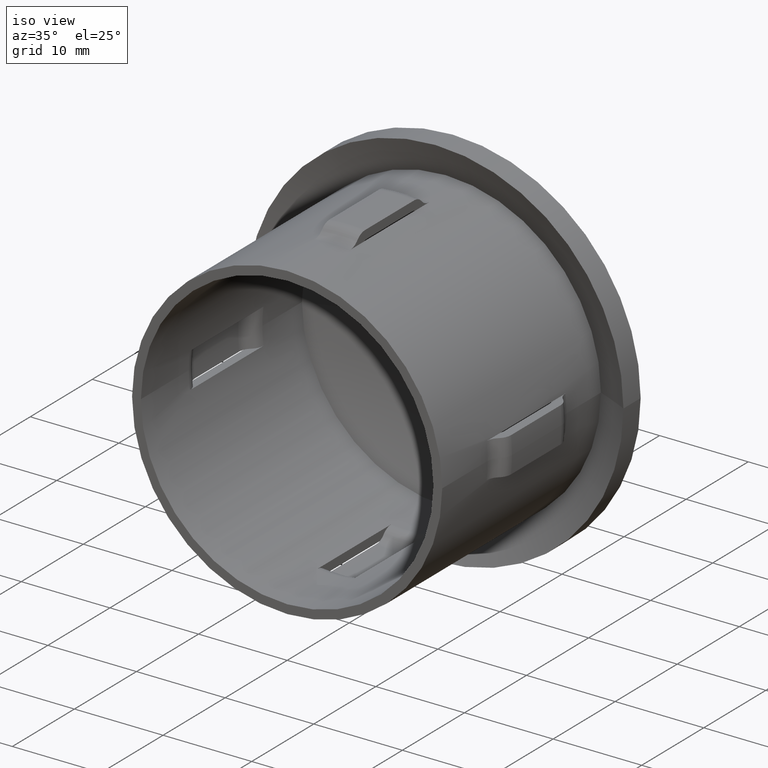
[diagram: clean part render]
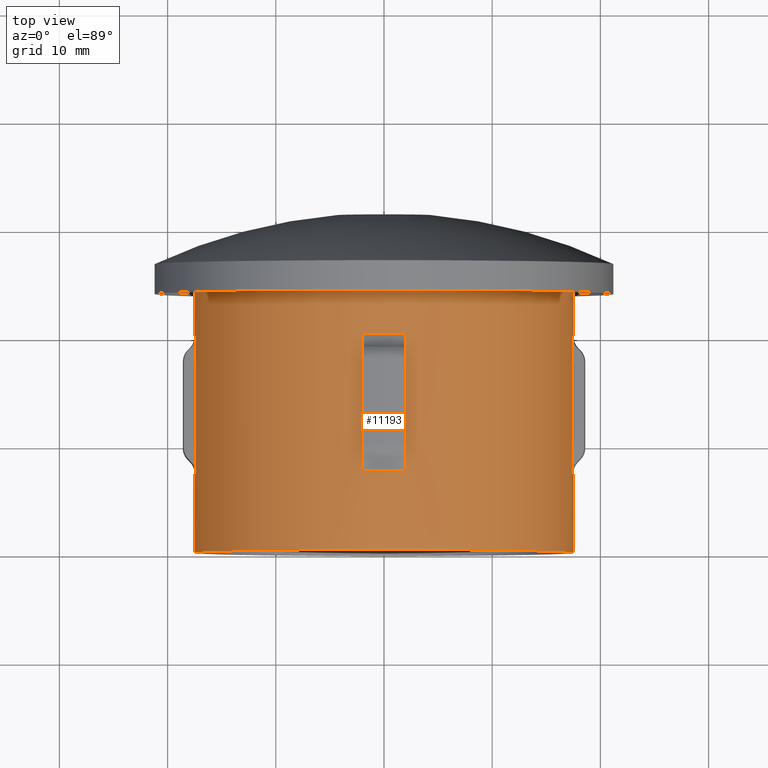
[diagram: tour spotlight — one face highlighted and labeled with its STEP entity id]
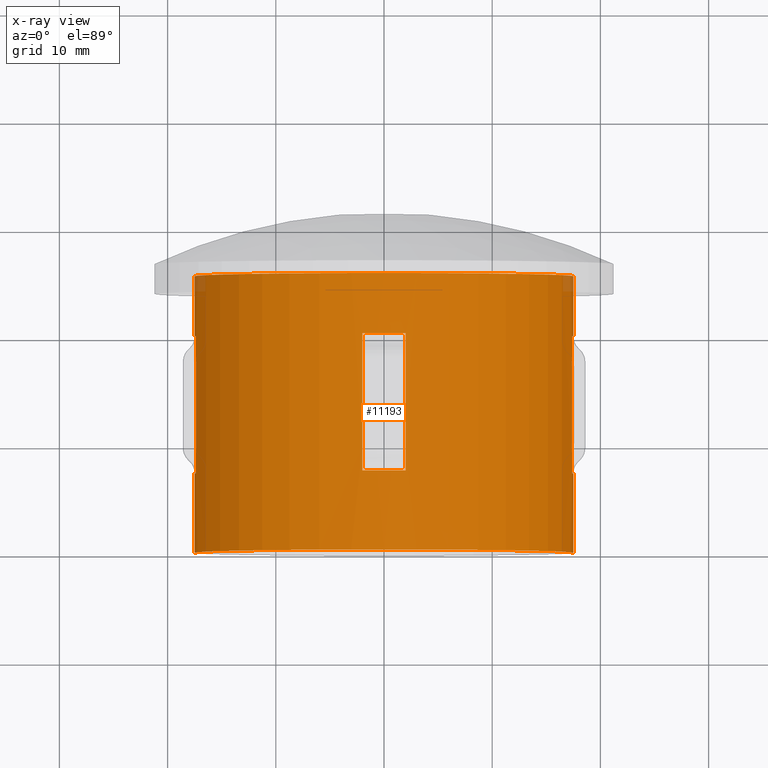
[diagram: x-ray of the same camera — body ghosted, this tour face saturated]
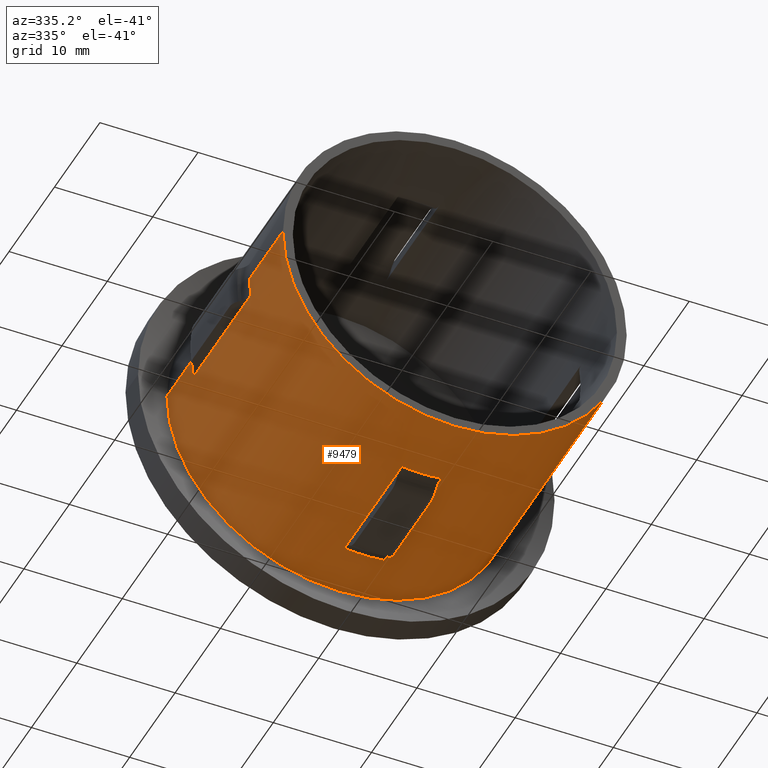
[diagram: tour spotlight — one face highlighted and labeled with its STEP entity id]
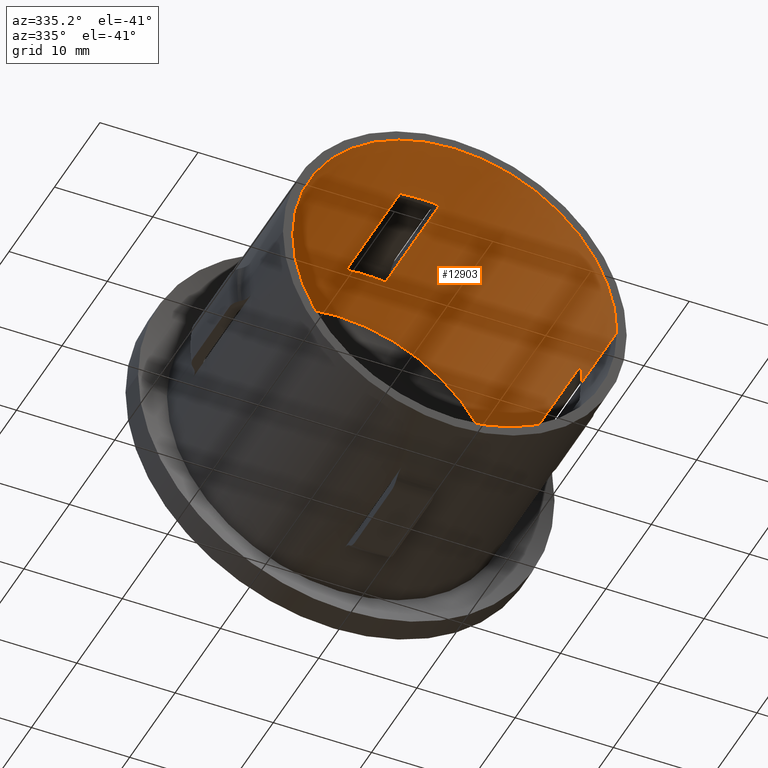
[diagram: tour spotlight — one face highlighted and labeled with its STEP entity id]
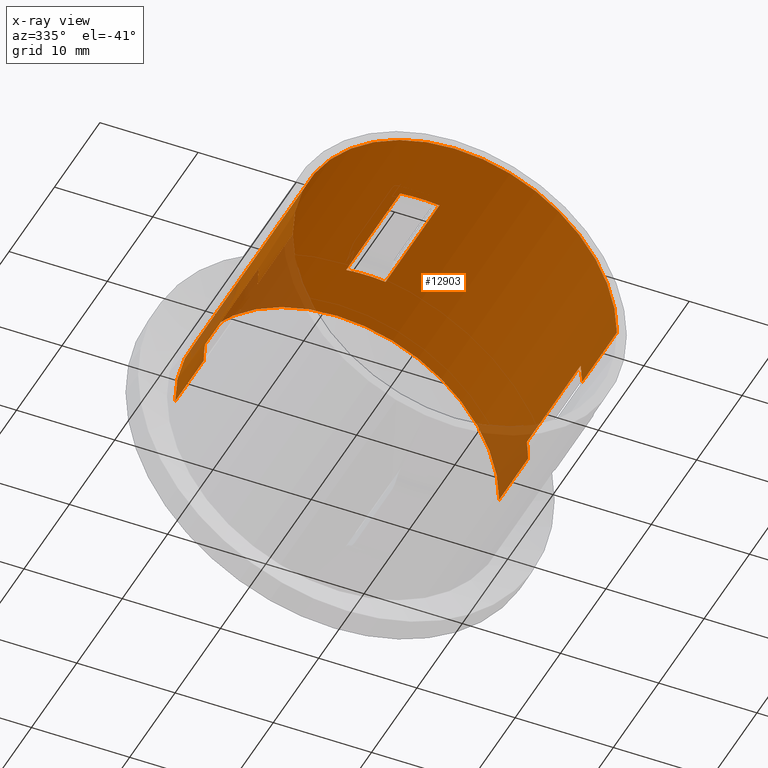
[diagram: x-ray of the same camera — body ghosted, this tour face saturated]
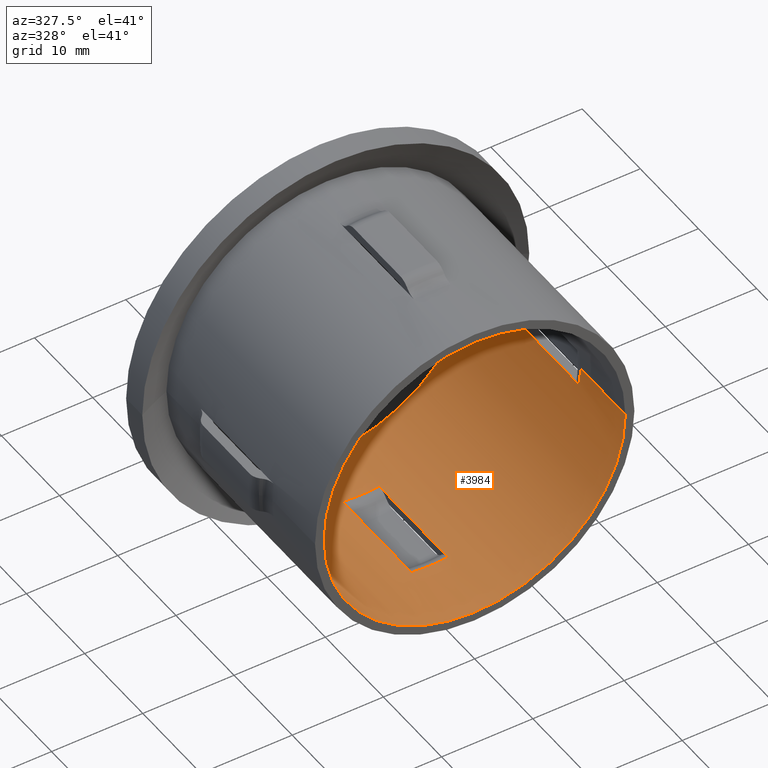
[diagram: tour spotlight — one face highlighted and labeled with its STEP entity id]
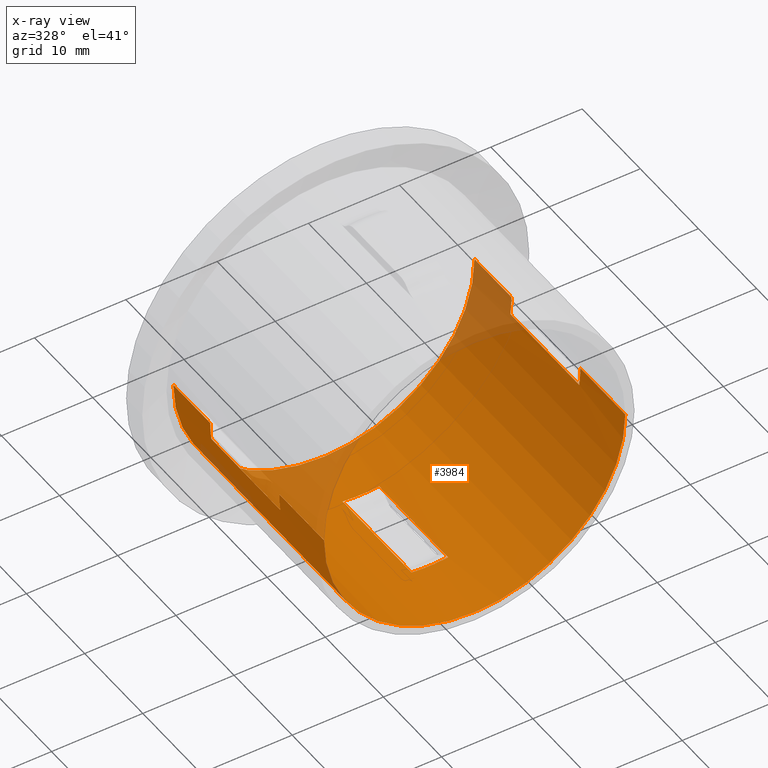
[diagram: x-ray of the same camera — body ghosted, this tour face saturated]
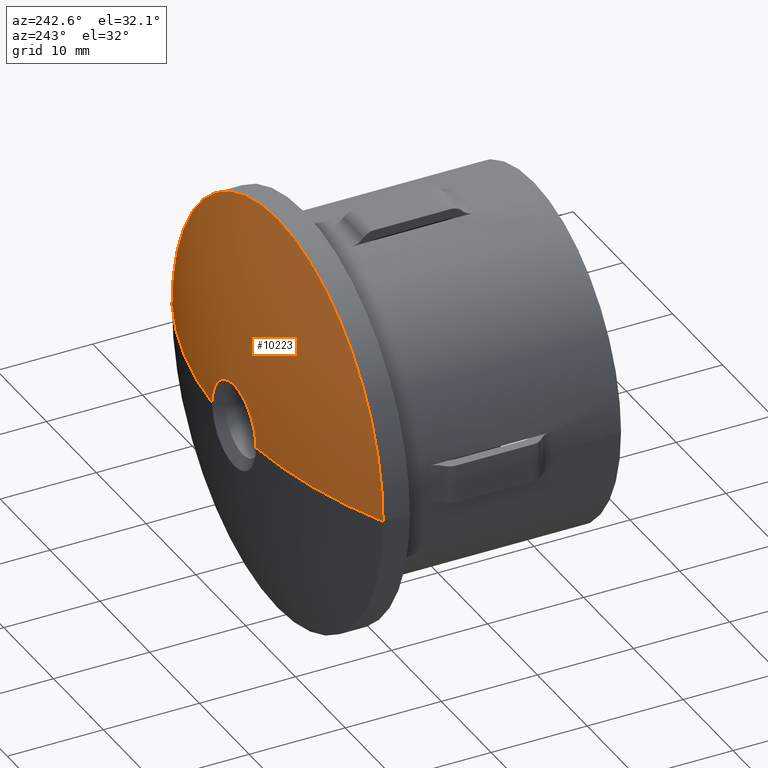
[diagram: tour spotlight — one face highlighted and labeled with its STEP entity id]
A machine part: a face-by-face anatomy tour. The part has 365 B-rep faces; the first image is the clean iso view, then the 5 largest visible faces are spotlighted one at a time (largest first), each with its STEP entity span.

Face 1 — top view, entity #11193. An x-ray twin of the same camera follows (body ghosted, this face saturated) — the face is partly hidden behind the body. In plain terms, the highlighted cylindrical surface (partial cylindrical patch) has radius 17.5 mm, axis along (-0, -1, -0).
Definition (entity closure, byte-faithful):
#173 = VERTEX_POINT ( 'NONE', #8145 ) ;
#307 = EDGE_CURVE ( 'NONE', #7097, #2342, #14315, .T. ) ;
#416 = VECTOR ( 'NONE', #15457, 1000.000000000000000 ) ;
#469 = AXIS2_PLACEMENT_3D ( 'NONE', #14567, #3259, #5654 ) ;
#502 = CIRCLE ( 'NONE', #13989, 17.50000000000005700 ) ;
#511 = VERTEX_POINT ( 'NONE', #10949 ) ;
#558 = DIRECTION ( 'NONE',  ( -2.449293598294745400E-017, -1.000000000000000000, -0.0000000000000000000 ) ) ;
#590 = VERTEX_POINT ( 'NONE', #13755 ) ;
#678 = ORIENTED_EDGE ( 'NONE', *, *, #5905, .T. ) ;
#688 = DIRECTION ( 'NONE',  ( -2.449293598294745400E-017, -1.000000000000000000, 0.0000000000000000000 ) ) ;
#689 = ORIENTED_EDGE ( 'NONE', *, *, #4052, .F. ) ;
#812 = LINE ( 'NONE', #12610, #416 ) ;
#821 = ORIENTED_EDGE ( 'NONE', *, *, #5134, .F. ) ;
#861 = DIRECTION ( 'NONE',  ( 1.000000000000000000, -2.973811673103095000E-015, 0.0000000000000000000 ) ) ;
#999 = CARTESIAN_POINT ( 'NONE',  ( 17.49999999999999600, 20.00000000000000000, 0.0000000000000000000 ) ) ;
#1005 = CIRCLE ( 'NONE', #469, 17.50000000000001800 ) ;
#1112 = DIRECTION ( 'NONE',  ( -2.449293598294745400E-017, -1.000000000000000000, -0.0000000000000000000 ) ) ;
#1163 = VERTEX_POINT ( 'NONE', #11671 ) ;
#1287 = ORIENTED_EDGE ( 'NONE', *, *, #3265, .T. ) ;
#1658 = DIRECTION ( 'NONE',  ( -2.449293598294745400E-017, -1.000000000000000000, -0.0000000000000000000 ) ) ;
#1827 = EDGE_LOOP ( 'NONE', ( #5779, #12638, #10394, #821, #678, #4986, #15472, #9732 ) ) ;
#1885 = DIRECTION ( 'NONE',  ( -2.904862207577519400E-015, -1.000000000000000000, -0.0000000000000000000 ) ) ;
#2114 = LINE ( 'NONE', #16101, #6279 ) ;
#2217 = ORIENTED_EDGE ( 'NONE', *, *, #8570, .F. ) ;
#2342 = VERTEX_POINT ( 'NONE', #4590 ) ;
#2348 = CYLINDRICAL_SURFACE ( 'NONE', #4217, 17.50000000000007100 ) ;
#2430 = VECTOR ( 'NONE', #13704, 1000.000000000000000 ) ;
#2573 = LINE ( 'NONE', #11717, #12418 ) ;
#2884 = LINE ( 'NONE', #10343, #15278 ) ;
#3217 = ORIENTED_EDGE ( 'NONE', *, *, #12082, .T. ) ;
#3259 = DIRECTION ( 'NONE',  ( -2.904862207577519400E-015, -1.000000000000000000, -0.0000000000000000000 ) ) ;
#3265 = EDGE_CURVE ( 'NONE', #10697, #9175, #2114, .T. ) ;
#3304 = CARTESIAN_POINT ( 'NONE',  ( -9.705713025142736400E-015, 25.55880433163928700, 0.0000000000000000000 ) ) ;
#3480 = ORIENTED_EDGE ( 'NONE', *, *, #307, .F. ) ;
#3499 = LINE ( 'NONE', #6647, #13111 ) ;
#3816 = CARTESIAN_POINT ( 'NONE',  ( -17.50000000000001400, 25.55880433163933700, 2.369691556350132100E-015 ) ) ;
#3837 = CARTESIAN_POINT ( 'NONE',  ( 17.50000000000000000, 1.206615646697376900E-015, 0.0000000000000000000 ) ) ;
#3880 = CARTESIAN_POINT ( 'NONE',  ( 17.38533865071371300, 9.533056394540524900, 1.999999999999994900 ) ) ;
#4018 = VERTEX_POINT ( 'NONE', #6292 ) ;
#4032 = EDGE_CURVE ( 'NONE', #11142, #7763, #2884, .T. ) ;
#4052 = EDGE_CURVE ( 'NONE', #1163, #8174, #11170, .T. ) ;
#4217 = AXIS2_PLACEMENT_3D ( 'NONE', #9778, #6143, #13735 ) ;
#4218 = EDGE_CURVE ( 'NONE', #15276, #12228, #3499, .T. ) ;
#4223 = ORIENTED_EDGE ( 'NONE', *, *, #7798, .F. ) ;
#4398 = CARTESIAN_POINT ( 'NONE',  ( -1.999999999999997800, 20.00000000000000000, 17.38533865071380500 ) ) ;
#4465 = CARTESIAN_POINT ( 'NONE',  ( 2.000000000000001300, 7.314718625761423200, 17.38533865071378400 ) ) ;
#4590 = CARTESIAN_POINT ( 'NONE',  ( -17.50000000000016300, 1.028767929119110500E-013, 2.143131898507882400E-015 ) ) ;
#4754 = AXIS2_PLACEMENT_3D ( 'NONE', #15848, #16013, #861 ) ;
#4853 = ORIENTED_EDGE ( 'NONE', *, *, #10954, .T. ) ;
#4917 = CARTESIAN_POINT ( 'NONE',  ( -1.999999999999997800, 17.78166223122093500, 17.38533865071380500 ) ) ;
#4986 = ORIENTED_EDGE ( 'NONE', *, *, #5077, .T. ) ;
#5019 = CARTESIAN_POINT ( 'NONE',  ( -2.585327364743976200E-014, 20.00000000000005300, 0.0000000000000000000 ) ) ;
#5077 = EDGE_CURVE ( 'NONE', #173, #4018, #812, .T. ) ;
#5119 = VECTOR ( 'NONE', #5429, 1000.000000000000000 ) ;
#5134 = EDGE_CURVE ( 'NONE', #10374, #11729, #1005, .T. ) ;
#5298 = DIRECTION ( 'NONE',  ( -2.449293598294745400E-017, -1.000000000000000000, 0.0000000000000000000 ) ) ;
#5429 = DIRECTION ( 'NONE',  ( -2.904862207577519400E-015, -1.000000000000000000, -0.0000000000000000000 ) ) ;
#5442 = CARTESIAN_POINT ( 'NONE',  ( -1.999999999999998700, 20.00000000000006000, 17.38533865071373400 ) ) ;
#5446 = DIRECTION ( 'NONE',  ( -2.449293598294745400E-017, -1.000000000000000000, -0.0000000000000000000 ) ) ;
#5471 = VERTEX_POINT ( 'NONE', #4917 ) ;
#5511 = LINE ( 'NONE', #14042, #5119 ) ;
#5604 = VECTOR ( 'NONE', #558, 1000.000000000000000 ) ;
#5654 = DIRECTION ( 'NONE',  ( 1.000000000000000000, -2.973811673103095000E-015, 0.0000000000000000000 ) ) ;
#5672 = CIRCLE ( 'NONE', #11110, 17.50000000000005700 ) ;
#5779 = ORIENTED_EDGE ( 'NONE', *, *, #14499, .F. ) ;
#5905 = EDGE_CURVE ( 'NONE', #10374, #173, #2573, .T. ) ;
#5939 = CARTESIAN_POINT ( 'NONE',  ( -17.38533865071388000, 9.533056394542196400, 1.999999999999994900 ) ) ;
#5987 = CARTESIAN_POINT ( 'NONE',  ( 17.49999999999999600, 25.55880433163923400, 0.0000000000000000000 ) ) ;
#6046 = EDGE_CURVE ( 'NONE', #9175, #13053, #8300, .T. ) ;
#6120 = FACE_OUTER_BOUND ( 'NONE', #8295, .T. ) ;
#6143 = DIRECTION ( 'NONE',  ( -2.904862207577519400E-015, -1.000000000000000000, -0.0000000000000000000 ) ) ;
#6279 = VECTOR ( 'NONE', #11257, 1000.000000000000000 ) ;
#6292 = CARTESIAN_POINT ( 'NONE',  ( 2.000000000000001300, 9.533056394540459200, 17.38533865071378400 ) ) ;
#6322 = VECTOR ( 'NONE', #5298, 1000.000000000000000 ) ;
#6326 = ORIENTED_EDGE ( 'NONE', *, *, #15594, .T. ) ;
#6482 = CARTESIAN_POINT ( 'NONE',  ( -17.38533865071388000, 20.00000000000000000, 1.999999999999994900 ) ) ;
#6495 = DIRECTION ( 'NONE',  ( -2.449293598294745400E-017, -1.000000000000000000, -0.0000000000000000000 ) ) ;
#6647 = CARTESIAN_POINT ( 'NONE',  ( -17.50000000000007100, 28.90000000000004800, 2.143131898507876900E-015 ) ) ;
#6825 = DIRECTION ( 'NONE',  ( 1.000000000000000000, -2.904862207577519400E-015, 0.0000000000000000000 ) ) ;
#6920 = ORIENTED_EDGE ( 'NONE', *, *, #6046, .T. ) ;
#7097 = VERTEX_POINT ( 'NONE', #3837 ) ;
#7119 = VECTOR ( 'NONE', #1112, 1000.000000000000000 ) ;
#7497 = CARTESIAN_POINT ( 'NONE',  ( 17.38533865071371300, 17.78166223122093500, 1.999999999999994900 ) ) ;
#7628 = DIRECTION ( 'NONE',  ( 1.000000000000000000, -2.973811673103095000E-015, 0.0000000000000000000 ) ) ;
#7683 = LINE ( 'NONE', #15378, #6322 ) ;
#7763 = VERTEX_POINT ( 'NONE', #999 ) ;
#7798 = EDGE_CURVE ( 'NONE', #8248, #11653, #10466, .T. ) ;
#7849 = CIRCLE ( 'NONE', #15790, 17.50000000000000400 ) ;
#7863 = FACE_BOUND ( 'NONE', #1827, .T. ) ;
#7912 = CARTESIAN_POINT ( 'NONE',  ( -17.50000000000004300, 20.00000000000010300, 2.143131898507874200E-015 ) ) ;
#8145 = CARTESIAN_POINT ( 'NONE',  ( 2.000000000000001800, 17.78166223122102000, 17.38533865071378400 ) ) ;
#8174 = VERTEX_POINT ( 'NONE', #7497 ) ;
#8241 = DIRECTION ( 'NONE',  ( 1.000000000000000000, -2.924248145218036900E-015, 0.0000000000000000000 ) ) ;
#8248 = VERTEX_POINT ( 'NONE', #3880 ) ;
#8295 = EDGE_LOOP ( 'NONE', ( #15293, #15362, #2217, #1287, #6920, #4853, #6326, #3217, #3480, #9970, #9423, #4223, #14036, #689, #12776, #9795 ) ) ;
#8300 = LINE ( 'NONE', #13394, #14365 ) ;
#8305 = DIRECTION ( 'NONE',  ( -2.904862207577519400E-015, -1.000000000000000000, -0.0000000000000000000 ) ) ;
#8374 = DIRECTION ( 'NONE',  ( 1.000000000000000000, -2.973811673103097400E-015, 0.0000000000000000000 ) ) ;
#8376 = CARTESIAN_POINT ( 'NONE',  ( 2.000000000000001800, 20.00000000000000000, 17.38533865071378400 ) ) ;
#8570 = EDGE_CURVE ( 'NONE', #10697, #12228, #11692, .T. ) ;
#8613 = CIRCLE ( 'NONE', #14217, 17.50000000000001800 ) ;
#8644 = DIRECTION ( 'NONE',  ( -2.904862207577519400E-015, -1.000000000000000000, -0.0000000000000000000 ) ) ;
#8751 = VECTOR ( 'NONE', #10329, 1000.000000000000000 ) ;
#9048 = VECTOR ( 'NONE', #1658, 1000.000000000000000 ) ;
#9091 = EDGE_CURVE ( 'NONE', #8174, #8248, #14014, .T. ) ;
#9094 = EDGE_CURVE ( 'NONE', #590, #7097, #14216, .T. ) ;
#9175 = VERTEX_POINT ( 'NONE', #14390 ) ;
#9225 = CIRCLE ( 'NONE', #10247, 17.50000000000005700 ) ;
#9423 = ORIENTED_EDGE ( 'NONE', *, *, #13412, .T. ) ;
#9665 = VECTOR ( 'NONE', #5446, 1000.000000000000000 ) ;
#9709 = DIRECTION ( 'NONE',  ( -2.904862207577519400E-015, -1.000000000000000000, -0.0000000000000000000 ) ) ;
#9732 = ORIENTED_EDGE ( 'NONE', *, *, #14573, .T. ) ;
#9778 = CARTESIAN_POINT ( 'NONE',  ( 0.0000000000000000000, 28.89999999999999500, 0.0000000000000000000 ) ) ;
#9795 = ORIENTED_EDGE ( 'NONE', *, *, #4032, .F. ) ;
#9844 = CARTESIAN_POINT ( 'NONE',  ( -1.999999999999998200, 9.533056394540524900, 17.38533865071380500 ) ) ;
#9864 = LINE ( 'NONE', #15414, #9665 ) ;
#9970 = ORIENTED_EDGE ( 'NONE', *, *, #9094, .F. ) ;
#10069 = DIRECTION ( 'NONE',  ( -2.904862207577519400E-015, -1.000000000000000000, -0.0000000000000000000 ) ) ;
#10079 = EDGE_CURVE ( 'NONE', #11729, #5471, #14400, .T. ) ;
#10127 = CARTESIAN_POINT ( 'NONE',  ( -8.395051779899014400E-014, 5.204170427930421300E-014, 0.0000000000000000000 ) ) ;
#10247 = AXIS2_PLACEMENT_3D ( 'NONE', #15824, #8305, #14712 ) ;
#10277 = CARTESIAN_POINT ( 'NONE',  ( 17.38533865071371300, 20.00000000000000000, 1.999999999999994900 ) ) ;
#10329 = DIRECTION ( 'NONE',  ( -2.449293598294745400E-017, -1.000000000000000000, 0.0000000000000000000 ) ) ;
#10343 = CARTESIAN_POINT ( 'NONE',  ( 17.50000000000007100, 28.89999999999994200, 0.0000000000000000000 ) ) ;
#10374 = VERTEX_POINT ( 'NONE', #8376 ) ;
#10394 = ORIENTED_EDGE ( 'NONE', *, *, #10079, .F. ) ;
#10464 = DIRECTION ( 'NONE',  ( -2.449293598294745400E-017, -1.000000000000000000, -0.0000000000000000000 ) ) ;
#10466 = LINE ( 'NONE', #13536, #7119 ) ;
#10498 = CARTESIAN_POINT ( 'NONE',  ( -1.999999999999997800, 20.00000000000000000, 17.38533865071380500 ) ) ;
#10516 = EDGE_CURVE ( 'NONE', #5471, #16247, #7683, .T. ) ;
#10697 = VERTEX_POINT ( 'NONE', #13056 ) ;
#10949 = CARTESIAN_POINT ( 'NONE',  ( -17.50000000000012100, 7.314718625761526200, 2.143131898507879300E-015 ) ) ;
#10954 = EDGE_CURVE ( 'NONE', #13053, #14738, #13924, .T. ) ;
#10992 = EDGE_CURVE ( 'NONE', #4018, #13341, #9864, .T. ) ;
#11110 = AXIS2_PLACEMENT_3D ( 'NONE', #13656, #8644, #13550 ) ;
#11142 = VERTEX_POINT ( 'NONE', #5987 ) ;
#11170 = LINE ( 'NONE', #11592, #12339 ) ;
#11193 = ADVANCED_FACE ( 'NONE', ( #7863, #6120 ), #2348, .T. ) ;
#11257 = DIRECTION ( 'NONE',  ( -2.449293598294745400E-017, -1.000000000000000000, -0.0000000000000000000 ) ) ;
#11478 = CARTESIAN_POINT ( 'NONE',  ( -1.999999999999998200, 7.314718625761423200, 17.38533865071380500 ) ) ;
#11576 = EDGE_CURVE ( 'NONE', #11142, #15276, #7849, .T. ) ;
#11592 = CARTESIAN_POINT ( 'NONE',  ( 17.38533865071371300, 20.00000000000000000, 1.999999999999994900 ) ) ;
#11653 = VERTEX_POINT ( 'NONE', #15900 ) ;
#11671 = CARTESIAN_POINT ( 'NONE',  ( 17.38533865071371300, 20.00000000000000000, 1.999999999999994900 ) ) ;
#11692 = CIRCLE ( 'NONE', #4754, 17.50000000000001800 ) ;
#11717 = CARTESIAN_POINT ( 'NONE',  ( 2.000000000000001800, 20.00000000000000000, 17.38533865071378400 ) ) ;
#11729 = VERTEX_POINT ( 'NONE', #5442 ) ;
#11915 = DIRECTION ( 'NONE',  ( -2.904862207577519400E-015, -1.000000000000000000, -0.0000000000000000000 ) ) ;
#11969 = CARTESIAN_POINT ( 'NONE',  ( -6.270226810395241300E-014, 7.314718625761475600, 0.0000000000000000000 ) ) ;
#12082 = EDGE_CURVE ( 'NONE', #511, #2342, #5511, .T. ) ;
#12228 = VERTEX_POINT ( 'NONE', #7912 ) ;
#12339 = VECTOR ( 'NONE', #6495, 1000.000000000000000 ) ;
#12418 = VECTOR ( 'NONE', #10464, 1000.000000000000000 ) ;
#12452 = CARTESIAN_POINT ( 'NONE',  ( -17.38533865071388000, 7.314718625761423200, 1.999999999999994900 ) ) ;
#12567 = CARTESIAN_POINT ( 'NONE',  ( 17.50000000000007100, 28.89999999999994200, 0.0000000000000000000 ) ) ;
#12610 = CARTESIAN_POINT ( 'NONE',  ( 2.000000000000001800, 20.00000000000000000, 17.38533865071378400 ) ) ;
#12638 = ORIENTED_EDGE ( 'NONE', *, *, #10516, .F. ) ;
#12734 = DIRECTION ( 'NONE',  ( -2.904862207577519400E-015, -1.000000000000000000, -0.0000000000000000000 ) ) ;
#12776 = ORIENTED_EDGE ( 'NONE', *, *, #15767, .F. ) ;
#13053 = VERTEX_POINT ( 'NONE', #5939 ) ;
#13056 = CARTESIAN_POINT ( 'NONE',  ( -17.38533865071388000, 20.00000000000000000, 1.999999999999994900 ) ) ;
#13111 = VECTOR ( 'NONE', #1885, 1000.000000000000000 ) ;
#13341 = VERTEX_POINT ( 'NONE', #4465 ) ;
#13394 = CARTESIAN_POINT ( 'NONE',  ( -17.38533865071388000, 20.00000000000000000, 1.999999999999994900 ) ) ;
#13412 = EDGE_CURVE ( 'NONE', #590, #11653, #9225, .T. ) ;
#13536 = CARTESIAN_POINT ( 'NONE',  ( 17.38533865071371300, 20.00000000000000000, 1.999999999999994900 ) ) ;
#13550 = DIRECTION ( 'NONE',  ( 1.000000000000000000, -2.924248145218036900E-015, 0.0000000000000000000 ) ) ;
#13656 = CARTESIAN_POINT ( 'NONE',  ( -6.270226810395241300E-014, 7.314718625761475600, 0.0000000000000000000 ) ) ;
#13674 = LINE ( 'NONE', #4398, #14463 ) ;
#13704 = DIRECTION ( 'NONE',  ( -2.904862207577519400E-015, -1.000000000000000000, -0.0000000000000000000 ) ) ;
#13735 = DIRECTION ( 'NONE',  ( 1.000000000000000000, -2.973811673103085900E-015, 0.0000000000000000000 ) ) ;
#13755 = CARTESIAN_POINT ( 'NONE',  ( 17.49999999999999600, 7.314718625761424100, 0.0000000000000000000 ) ) ;
#13873 = DIRECTION ( 'NONE',  ( -2.904862207577519400E-015, -1.000000000000000000, -0.0000000000000000000 ) ) ;
#13924 = LINE ( 'NONE', #6482, #9048 ) ;
#13989 = AXIS2_PLACEMENT_3D ( 'NONE', #11969, #11915, #8241 ) ;
#14014 = LINE ( 'NONE', #10277, #8751 ) ;
#14036 = ORIENTED_EDGE ( 'NONE', *, *, #9091, .F. ) ;
#14042 = CARTESIAN_POINT ( 'NONE',  ( -17.50000000000007100, 28.90000000000004800, 2.143131898507876900E-015 ) ) ;
#14216 = LINE ( 'NONE', #12567, #2430 ) ;
#14217 = AXIS2_PLACEMENT_3D ( 'NONE', #5019, #10069, #7628 ) ;
#14315 = CIRCLE ( 'NONE', #16135, 17.50000000000008500 ) ;
#14365 = VECTOR ( 'NONE', #688, 1000.000000000000000 ) ;
#14390 = CARTESIAN_POINT ( 'NONE',  ( -17.38533865071388000, 17.78166223122092400, 1.999999999999994900 ) ) ;
#14400 = LINE ( 'NONE', #10498, #5604 ) ;
#14417 = DIRECTION ( 'NONE',  ( -2.449293598294745400E-017, -1.000000000000000000, -0.0000000000000000000 ) ) ;
#14463 = VECTOR ( 'NONE', #14417, 1000.000000000000000 ) ;
#14499 = EDGE_CURVE ( 'NONE', #16247, #15909, #13674, .T. ) ;
#14567 = CARTESIAN_POINT ( 'NONE',  ( -2.585327364743976200E-014, 20.00000000000005300, 0.0000000000000000000 ) ) ;
#14573 = EDGE_CURVE ( 'NONE', #13341, #15909, #502, .T. ) ;
#14712 = DIRECTION ( 'NONE',  ( 1.000000000000000000, -2.924248145218036900E-015, 0.0000000000000000000 ) ) ;
#14738 = VERTEX_POINT ( 'NONE', #12452 ) ;
#15276 = VERTEX_POINT ( 'NONE', #3816 ) ;
#15278 = VECTOR ( 'NONE', #12734, 1000.000000000000000 ) ;
#15293 = ORIENTED_EDGE ( 'NONE', *, *, #11576, .T. ) ;
#15362 = ORIENTED_EDGE ( 'NONE', *, *, #4218, .T. ) ;
#15378 = CARTESIAN_POINT ( 'NONE',  ( -1.999999999999997800, 20.00000000000000000, 17.38533865071380500 ) ) ;
#15414 = CARTESIAN_POINT ( 'NONE',  ( 2.000000000000001800, 20.00000000000000000, 17.38533865071378400 ) ) ;
#15457 = DIRECTION ( 'NONE',  ( -2.449293598294745400E-017, -1.000000000000000000, 0.0000000000000000000 ) ) ;
#15472 = ORIENTED_EDGE ( 'NONE', *, *, #10992, .T. ) ;
#15594 = EDGE_CURVE ( 'NONE', #14738, #511, #5672, .T. ) ;
#15767 = EDGE_CURVE ( 'NONE', #7763, #1163, #8613, .T. ) ;
#15790 = AXIS2_PLACEMENT_3D ( 'NONE', #3304, #9709, #8374 ) ;
#15824 = CARTESIAN_POINT ( 'NONE',  ( -6.270226810395241300E-014, 7.314718625761475600, 0.0000000000000000000 ) ) ;
#15848 = CARTESIAN_POINT ( 'NONE',  ( -2.585327364743976200E-014, 20.00000000000005300, 0.0000000000000000000 ) ) ;
#15900 = CARTESIAN_POINT ( 'NONE',  ( 17.38533865071371300, 7.314718625761423200, 1.999999999999994900 ) ) ;
#15909 = VERTEX_POINT ( 'NONE', #11478 ) ;
#16013 = DIRECTION ( 'NONE',  ( -2.904862207577519400E-015, -1.000000000000000000, -0.0000000000000000000 ) ) ;
#16101 = CARTESIAN_POINT ( 'NONE',  ( -17.38533865071388000, 20.00000000000000000, 1.999999999999994900 ) ) ;
#16135 = AXIS2_PLACEMENT_3D ( 'NONE', #10127, #13873, #6825 ) ;
#16247 = VERTEX_POINT ( 'NONE', #9844 ) ;

Face 2 — auxiliary view, entity #9479. In plain terms, the highlighted cylindrical surface (partial cylindrical patch) has radius 17.5 mm, axis along (-0, -1, -0).
Definition (entity closure, byte-faithful):
#22 = CARTESIAN_POINT ( 'NONE',  ( 2.000000000000001800, 20.00000000000000000, -17.38533865071378400 ) ) ;
#147 = AXIS2_PLACEMENT_3D ( 'NONE', #15057, #1245, #10080 ) ;
#168 = ORIENTED_EDGE ( 'NONE', *, *, #4218, .F. ) ;
#194 = AXIS2_PLACEMENT_3D ( 'NONE', #5334, #14066, #15253 ) ;
#297 = AXIS2_PLACEMENT_3D ( 'NONE', #7465, #2286, #6280 ) ;
#462 = ORIENTED_EDGE ( 'NONE', *, *, #9922, .T. ) ;
#511 = VERTEX_POINT ( 'NONE', #10949 ) ;
#590 = VERTEX_POINT ( 'NONE', #13755 ) ;
#645 = ORIENTED_EDGE ( 'NONE', *, *, #14615, .F. ) ;
#692 = AXIS2_PLACEMENT_3D ( 'NONE', #11878, #2908, #13119 ) ;
#845 = LINE ( 'NONE', #3699, #7182 ) ;
#876 = VERTEX_POINT ( 'NONE', #7591 ) ;
#973 = VERTEX_POINT ( 'NONE', #8828 ) ;
#999 = CARTESIAN_POINT ( 'NONE',  ( 17.49999999999999600, 20.00000000000000000, 0.0000000000000000000 ) ) ;
#1033 = CARTESIAN_POINT ( 'NONE',  ( 2.000000000000001800, 17.78166223122093500, -17.38533865071378400 ) ) ;
#1040 = FACE_OUTER_BOUND ( 'NONE', #3781, .T. ) ;
#1245 = DIRECTION ( 'NONE',  ( -2.904862207577519400E-015, -1.000000000000000000, -0.0000000000000000000 ) ) ;
#1270 = CARTESIAN_POINT ( 'NONE',  ( 17.38533865071371300, 9.533056394540361500, -2.000000000000006200 ) ) ;
#1355 = VERTEX_POINT ( 'NONE', #1033 ) ;
#1373 = VERTEX_POINT ( 'NONE', #16019 ) ;
#1468 = EDGE_CURVE ( 'NONE', #2184, #1355, #4323, .T. ) ;
#1695 = VERTEX_POINT ( 'NONE', #7212 ) ;
#1763 = ORIENTED_EDGE ( 'NONE', *, *, #9094, .T. ) ;
#1858 = EDGE_CURVE ( 'NONE', #3299, #13654, #12365, .T. ) ;
#1885 = DIRECTION ( 'NONE',  ( -2.904862207577519400E-015, -1.000000000000000000, -0.0000000000000000000 ) ) ;
#2092 = CARTESIAN_POINT ( 'NONE',  ( -6.270226810395241300E-014, 7.314718625761475600, 0.0000000000000000000 ) ) ;
#2184 = VERTEX_POINT ( 'NONE', #9141 ) ;
#2196 = DIRECTION ( 'NONE',  ( -2.904862207577519400E-015, -1.000000000000000000, -0.0000000000000000000 ) ) ;
#2218 = LINE ( 'NONE', #12830, #11473 ) ;
#2286 = DIRECTION ( 'NONE',  ( -2.904862207577519400E-015, -1.000000000000000000, -0.0000000000000000000 ) ) ;
#2342 = VERTEX_POINT ( 'NONE', #4590 ) ;
#2430 = VECTOR ( 'NONE', #13704, 1000.000000000000000 ) ;
#2500 = DIRECTION ( 'NONE',  ( 1.000000000000000000, -2.973811673103095000E-015, 0.0000000000000000000 ) ) ;
#2540 = ORIENTED_EDGE ( 'NONE', *, *, #12060, .F. ) ;
#2884 = LINE ( 'NONE', #10343, #15278 ) ;
#2908 = DIRECTION ( 'NONE',  ( -2.904862207577519400E-015, -1.000000000000000000, -0.0000000000000000000 ) ) ;
#2966 = VECTOR ( 'NONE', #6606, 1000.000000000000000 ) ;
#2982 = CARTESIAN_POINT ( 'NONE',  ( 2.000000000000001300, 9.533056394540524900, -17.38533865071378400 ) ) ;
#3108 = LINE ( 'NONE', #13079, #12562 ) ;
#3176 = EDGE_CURVE ( 'NONE', #16017, #7763, #9629, .T. ) ;
#3220 = AXIS2_PLACEMENT_3D ( 'NONE', #5849, #10900, #9639 ) ;
#3236 = CIRCLE ( 'NONE', #12605, 17.50000000000005700 ) ;
#3284 = DIRECTION ( 'NONE',  ( -2.904862207577519400E-015, -1.000000000000000000, -0.0000000000000000000 ) ) ;
#3299 = VERTEX_POINT ( 'NONE', #13756 ) ;
#3438 = ORIENTED_EDGE ( 'NONE', *, *, #8755, .F. ) ;
#3450 = ORIENTED_EDGE ( 'NONE', *, *, #6327, .T. ) ;
#3499 = LINE ( 'NONE', #6647, #13111 ) ;
#3699 = CARTESIAN_POINT ( 'NONE',  ( 17.38533865071371300, 20.00000000000000000, -2.000000000000006200 ) ) ;
#3781 = EDGE_LOOP ( 'NONE', ( #168, #5054, #13372, #7391, #11895, #3450, #7615, #8531, #1763, #3438, #16348, #5819, #13164, #11482, #16294, #645 ) ) ;
#3816 = CARTESIAN_POINT ( 'NONE',  ( -17.50000000000001400, 25.55880433163933700, 2.369691556350132100E-015 ) ) ;
#3837 = CARTESIAN_POINT ( 'NONE',  ( 17.50000000000000000, 1.206615646697376900E-015, 0.0000000000000000000 ) ) ;
#4032 = EDGE_CURVE ( 'NONE', #11142, #7763, #2884, .T. ) ;
#4165 = LINE ( 'NONE', #14953, #5363 ) ;
#4218 = EDGE_CURVE ( 'NONE', #15276, #12228, #3499, .T. ) ;
#4255 = EDGE_CURVE ( 'NONE', #1355, #7971, #11388, .T. ) ;
#4323 = LINE ( 'NONE', #22, #13915 ) ;
#4411 = CARTESIAN_POINT ( 'NONE',  ( -17.38533865071388000, 20.00000000000000000, -2.000000000000005800 ) ) ;
#4587 = DIRECTION ( 'NONE',  ( -2.449293598294745400E-017, -1.000000000000000000, 0.0000000000000000000 ) ) ;
#4590 = CARTESIAN_POINT ( 'NONE',  ( -17.50000000000016300, 1.028767929119110500E-013, 2.143131898507882400E-015 ) ) ;
#4592 = VECTOR ( 'NONE', #4587, 1000.000000000000000 ) ;
#4678 = ORIENTED_EDGE ( 'NONE', *, *, #4255, .F. ) ;
#4988 = CIRCLE ( 'NONE', #5898, 17.50000000000000400 ) ;
#5054 = ORIENTED_EDGE ( 'NONE', *, *, #5368, .T. ) ;
#5099 = DIRECTION ( 'NONE',  ( -2.449293598294745400E-017, -1.000000000000000000, -0.0000000000000000000 ) ) ;
#5119 = VECTOR ( 'NONE', #5429, 1000.000000000000000 ) ;
#5234 = VERTEX_POINT ( 'NONE', #13885 ) ;
#5334 = CARTESIAN_POINT ( 'NONE',  ( -6.270226810395241300E-014, 7.314718625761475600, 0.0000000000000000000 ) ) ;
#5363 = VECTOR ( 'NONE', #8455, 1000.000000000000000 ) ;
#5368 = EDGE_CURVE ( 'NONE', #15276, #11142, #4988, .T. ) ;
#5429 = DIRECTION ( 'NONE',  ( -2.904862207577519400E-015, -1.000000000000000000, -0.0000000000000000000 ) ) ;
#5438 = EDGE_CURVE ( 'NONE', #876, #1695, #11259, .T. ) ;
#5511 = LINE ( 'NONE', #14042, #5119 ) ;
#5803 = CARTESIAN_POINT ( 'NONE',  ( -9.705713025142736400E-015, 25.55880433163928700, 0.0000000000000000000 ) ) ;
#5819 = ORIENTED_EDGE ( 'NONE', *, *, #13667, .T. ) ;
#5849 = CARTESIAN_POINT ( 'NONE',  ( -2.585327364743976200E-014, 20.00000000000005300, 0.0000000000000000000 ) ) ;
#5870 = VERTEX_POINT ( 'NONE', #14972 ) ;
#5888 = ORIENTED_EDGE ( 'NONE', *, *, #1468, .F. ) ;
#5898 = AXIS2_PLACEMENT_3D ( 'NONE', #5803, #7151, #13388 ) ;
#5987 = CARTESIAN_POINT ( 'NONE',  ( 17.49999999999999600, 25.55880433163923400, 0.0000000000000000000 ) ) ;
#6113 = CARTESIAN_POINT ( 'NONE',  ( 2.000000000000001300, 7.314718625761423200, -17.38533865071378400 ) ) ;
#6168 = DIRECTION ( 'NONE',  ( -2.904862207577519400E-015, -1.000000000000000000, -0.0000000000000000000 ) ) ;
#6217 = CARTESIAN_POINT ( 'NONE',  ( -2.585327364743976200E-014, 20.00000000000005300, 0.0000000000000000000 ) ) ;
#6280 = DIRECTION ( 'NONE',  ( 1.000000000000000000, -2.924248145218036900E-015, 0.0000000000000000000 ) ) ;
#6327 = EDGE_CURVE ( 'NONE', #5234, #14956, #14564, .T. ) ;
#6355 = CARTESIAN_POINT ( 'NONE',  ( -17.38533865071388000, 20.00000000000000000, -2.000000000000005800 ) ) ;
#6606 = DIRECTION ( 'NONE',  ( -2.449293598294745400E-017, -1.000000000000000000, -0.0000000000000000000 ) ) ;
#6647 = CARTESIAN_POINT ( 'NONE',  ( -17.50000000000007100, 28.90000000000004800, 2.143131898507876900E-015 ) ) ;
#6720 = VECTOR ( 'NONE', #14915, 1000.000000000000000 ) ;
#6771 = EDGE_CURVE ( 'NONE', #1695, #14393, #12992, .T. ) ;
#6864 = CIRCLE ( 'NONE', #297, 17.50000000000005700 ) ;
#7082 = ORIENTED_EDGE ( 'NONE', *, *, #13583, .F. ) ;
#7097 = VERTEX_POINT ( 'NONE', #3837 ) ;
#7116 = CARTESIAN_POINT ( 'NONE',  ( -17.38533865071388000, 7.314718625761423200, -2.000000000000005800 ) ) ;
#7151 = DIRECTION ( 'NONE',  ( -2.904862207577519400E-015, -1.000000000000000000, -0.0000000000000000000 ) ) ;
#7182 = VECTOR ( 'NONE', #9921, 1000.000000000000000 ) ;
#7212 = CARTESIAN_POINT ( 'NONE',  ( -17.38533865071388000, 9.533056394540524900, -2.000000000000005800 ) ) ;
#7240 = EDGE_CURVE ( 'NONE', #973, #15667, #11637, .T. ) ;
#7259 = CARTESIAN_POINT ( 'NONE',  ( -2.585327364743976200E-014, 20.00000000000005300, 0.0000000000000000000 ) ) ;
#7391 = ORIENTED_EDGE ( 'NONE', *, *, #3176, .F. ) ;
#7465 = CARTESIAN_POINT ( 'NONE',  ( -6.270226810395241300E-014, 7.314718625761475600, 0.0000000000000000000 ) ) ;
#7491 = EDGE_CURVE ( 'NONE', #16017, #5234, #4165, .T. ) ;
#7591 = CARTESIAN_POINT ( 'NONE',  ( -17.38533865071388000, 17.78166223122093500, -2.000000000000005800 ) ) ;
#7596 = AXIS2_PLACEMENT_3D ( 'NONE', #7259, #3284, #13488 ) ;
#7615 = ORIENTED_EDGE ( 'NONE', *, *, #8778, .T. ) ;
#7763 = VERTEX_POINT ( 'NONE', #999 ) ;
#7912 = CARTESIAN_POINT ( 'NONE',  ( -17.50000000000004300, 20.00000000000010300, 2.143131898507874200E-015 ) ) ;
#7971 = VERTEX_POINT ( 'NONE', #2982 ) ;
#8054 = DIRECTION ( 'NONE',  ( -2.449293598294745400E-017, -1.000000000000000000, -0.0000000000000000000 ) ) ;
#8228 = DIRECTION ( 'NONE',  ( -2.449293598294745400E-017, -1.000000000000000000, 0.0000000000000000000 ) ) ;
#8323 = DIRECTION ( 'NONE',  ( 1.000000000000000000, -2.924248145218036900E-015, 0.0000000000000000000 ) ) ;
#8455 = DIRECTION ( 'NONE',  ( -2.449293598294745400E-017, -1.000000000000000000, -0.0000000000000000000 ) ) ;
#8531 = ORIENTED_EDGE ( 'NONE', *, *, #8590, .T. ) ;
#8590 = EDGE_CURVE ( 'NONE', #1373, #590, #3236, .T. ) ;
#8607 = DIRECTION ( 'NONE',  ( -2.449293598294745400E-017, -1.000000000000000000, 0.0000000000000000000 ) ) ;
#8755 = EDGE_CURVE ( 'NONE', #2342, #7097, #13824, .T. ) ;
#8778 = EDGE_CURVE ( 'NONE', #14956, #1373, #845, .T. ) ;
#8812 = DIRECTION ( 'NONE',  ( -2.449293598294745400E-017, -1.000000000000000000, -0.0000000000000000000 ) ) ;
#8828 = CARTESIAN_POINT ( 'NONE',  ( -1.999999999999997300, 20.00000000000000000, -17.38533865071380500 ) ) ;
#9094 = EDGE_CURVE ( 'NONE', #590, #7097, #14216, .T. ) ;
#9141 = CARTESIAN_POINT ( 'NONE',  ( 2.000000000000002700, 20.00000000000004600, -17.38533865071372700 ) ) ;
#9160 = CARTESIAN_POINT ( 'NONE',  ( 2.000000000000001800, 20.00000000000000000, -17.38533865071378400 ) ) ;
#9407 = AXIS2_PLACEMENT_3D ( 'NONE', #6217, #6168, #2500 ) ;
#9479 = ADVANCED_FACE ( 'NONE', ( #1040, #11491 ), #16214, .T. ) ;
#9599 = LINE ( 'NONE', #6355, #15477 ) ;
#9629 = CIRCLE ( 'NONE', #3220, 17.50000000000001800 ) ;
#9639 = DIRECTION ( 'NONE',  ( 1.000000000000000000, -2.973811673103095000E-015, 0.0000000000000000000 ) ) ;
#9921 = DIRECTION ( 'NONE',  ( -2.449293598294745400E-017, -1.000000000000000000, -0.0000000000000000000 ) ) ;
#9922 = EDGE_CURVE ( 'NONE', #15555, #3299, #2218, .T. ) ;
#10080 = DIRECTION ( 'NONE',  ( 1.000000000000000000, -2.904862207577519400E-015, 0.0000000000000000000 ) ) ;
#10167 = ORIENTED_EDGE ( 'NONE', *, *, #1858, .T. ) ;
#10342 = CARTESIAN_POINT ( 'NONE',  ( -17.38533865071388000, 20.00000000000000000, -2.000000000000005800 ) ) ;
#10343 = CARTESIAN_POINT ( 'NONE',  ( 17.50000000000007100, 28.89999999999994200, 0.0000000000000000000 ) ) ;
#10602 = CIRCLE ( 'NONE', #9407, 17.50000000000001800 ) ;
#10834 = ORIENTED_EDGE ( 'NONE', *, *, #14035, .T. ) ;
#10900 = DIRECTION ( 'NONE',  ( -2.904862207577519400E-015, -1.000000000000000000, -0.0000000000000000000 ) ) ;
#10936 = CARTESIAN_POINT ( 'NONE',  ( -1.999999999999997300, 20.00000000000000000, -17.38533865071380500 ) ) ;
#10949 = CARTESIAN_POINT ( 'NONE',  ( -17.50000000000012100, 7.314718625761526200, 2.143131898507879300E-015 ) ) ;
#10998 = VECTOR ( 'NONE', #8228, 1000.000000000000000 ) ;
#11142 = VERTEX_POINT ( 'NONE', #5987 ) ;
#11259 = LINE ( 'NONE', #4411, #4592 ) ;
#11310 = CARTESIAN_POINT ( 'NONE',  ( -1.999999999999997300, 20.00000000000000000, -17.38533865071380500 ) ) ;
#11388 = LINE ( 'NONE', #9160, #10998 ) ;
#11473 = VECTOR ( 'NONE', #12726, 1000.000000000000000 ) ;
#11482 = ORIENTED_EDGE ( 'NONE', *, *, #5438, .F. ) ;
#11491 = FACE_BOUND ( 'NONE', #16207, .T. ) ;
#11637 = LINE ( 'NONE', #11310, #6720 ) ;
#11878 = CARTESIAN_POINT ( 'NONE',  ( 0.0000000000000000000, 28.89999999999999500, 0.0000000000000000000 ) ) ;
#11895 = ORIENTED_EDGE ( 'NONE', *, *, #7491, .T. ) ;
#12060 = EDGE_CURVE ( 'NONE', #7971, #13654, #3108, .T. ) ;
#12082 = EDGE_CURVE ( 'NONE', #511, #2342, #5511, .T. ) ;
#12177 = DIRECTION ( 'NONE',  ( -2.449293598294745400E-017, -1.000000000000000000, 0.0000000000000000000 ) ) ;
#12201 = CARTESIAN_POINT ( 'NONE',  ( -1.999999999999997300, 17.78166223122099500, -17.38533865071380500 ) ) ;
#12228 = VERTEX_POINT ( 'NONE', #7912 ) ;
#12365 = CIRCLE ( 'NONE', #194, 17.50000000000005700 ) ;
#12562 = VECTOR ( 'NONE', #8054, 1000.000000000000000 ) ;
#12567 = CARTESIAN_POINT ( 'NONE',  ( 17.50000000000007100, 28.89999999999994200, 0.0000000000000000000 ) ) ;
#12605 = AXIS2_PLACEMENT_3D ( 'NONE', #2092, #2196, #8323 ) ;
#12723 = VECTOR ( 'NONE', #12177, 1000.000000000000000 ) ;
#12726 = DIRECTION ( 'NONE',  ( -2.449293598294745400E-017, -1.000000000000000000, -0.0000000000000000000 ) ) ;
#12734 = DIRECTION ( 'NONE',  ( -2.904862207577519400E-015, -1.000000000000000000, -0.0000000000000000000 ) ) ;
#12830 = CARTESIAN_POINT ( 'NONE',  ( -1.999999999999997300, 20.00000000000000000, -17.38533865071380500 ) ) ;
#12992 = LINE ( 'NONE', #10342, #2966 ) ;
#13079 = CARTESIAN_POINT ( 'NONE',  ( 2.000000000000001800, 20.00000000000000000, -17.38533865071378400 ) ) ;
#13111 = VECTOR ( 'NONE', #1885, 1000.000000000000000 ) ;
#13119 = DIRECTION ( 'NONE',  ( 1.000000000000000000, -2.973811673103085900E-015, 0.0000000000000000000 ) ) ;
#13164 = ORIENTED_EDGE ( 'NONE', *, *, #6771, .F. ) ;
#13372 = ORIENTED_EDGE ( 'NONE', *, *, #4032, .T. ) ;
#13388 = DIRECTION ( 'NONE',  ( 1.000000000000000000, -2.973811673103097400E-015, 0.0000000000000000000 ) ) ;
#13488 = DIRECTION ( 'NONE',  ( 1.000000000000000000, -2.973811673103095000E-015, 0.0000000000000000000 ) ) ;
#13583 = EDGE_CURVE ( 'NONE', #973, #2184, #10602, .T. ) ;
#13654 = VERTEX_POINT ( 'NONE', #6113 ) ;
#13667 = EDGE_CURVE ( 'NONE', #511, #14393, #6864, .T. ) ;
#13704 = DIRECTION ( 'NONE',  ( -2.904862207577519400E-015, -1.000000000000000000, -0.0000000000000000000 ) ) ;
#13755 = CARTESIAN_POINT ( 'NONE',  ( 17.49999999999999600, 7.314718625761424100, 0.0000000000000000000 ) ) ;
#13756 = CARTESIAN_POINT ( 'NONE',  ( -1.999999999999997800, 7.314718625761423200, -17.38533865071380500 ) ) ;
#13824 = CIRCLE ( 'NONE', #147, 17.50000000000008500 ) ;
#13885 = CARTESIAN_POINT ( 'NONE',  ( 17.38533865071371300, 17.78166223122108000, -2.000000000000006200 ) ) ;
#13915 = VECTOR ( 'NONE', #8812, 1000.000000000000000 ) ;
#14035 = EDGE_CURVE ( 'NONE', #15667, #15555, #16091, .T. ) ;
#14042 = CARTESIAN_POINT ( 'NONE',  ( -17.50000000000007100, 28.90000000000004800, 2.143131898507876900E-015 ) ) ;
#14066 = DIRECTION ( 'NONE',  ( -2.904862207577519400E-015, -1.000000000000000000, -0.0000000000000000000 ) ) ;
#14216 = LINE ( 'NONE', #12567, #2430 ) ;
#14316 = ORIENTED_EDGE ( 'NONE', *, *, #7240, .T. ) ;
#14393 = VERTEX_POINT ( 'NONE', #7116 ) ;
#14434 = CARTESIAN_POINT ( 'NONE',  ( -1.999999999999997800, 9.533056394542097000, -17.38533865071380500 ) ) ;
#14564 = LINE ( 'NONE', #14787, #16171 ) ;
#14615 = EDGE_CURVE ( 'NONE', #12228, #5870, #14862, .T. ) ;
#14787 = CARTESIAN_POINT ( 'NONE',  ( 17.38533865071371300, 20.00000000000000000, -2.000000000000006200 ) ) ;
#14862 = CIRCLE ( 'NONE', #7596, 17.50000000000001800 ) ;
#14915 = DIRECTION ( 'NONE',  ( -2.449293598294745400E-017, -1.000000000000000000, -0.0000000000000000000 ) ) ;
#14953 = CARTESIAN_POINT ( 'NONE',  ( 17.38533865071371300, 20.00000000000000000, -2.000000000000006200 ) ) ;
#14956 = VERTEX_POINT ( 'NONE', #1270 ) ;
#14972 = CARTESIAN_POINT ( 'NONE',  ( -17.38533865071375200, 20.00000000000010300, -2.000000000000006200 ) ) ;
#15057 = CARTESIAN_POINT ( 'NONE',  ( -8.395051779899014400E-014, 5.204170427930421300E-014, 0.0000000000000000000 ) ) ;
#15253 = DIRECTION ( 'NONE',  ( 1.000000000000000000, -2.924248145218036900E-015, 0.0000000000000000000 ) ) ;
#15276 = VERTEX_POINT ( 'NONE', #3816 ) ;
#15278 = VECTOR ( 'NONE', #12734, 1000.000000000000000 ) ;
#15299 = EDGE_CURVE ( 'NONE', #5870, #876, #9599, .T. ) ;
#15477 = VECTOR ( 'NONE', #5099, 1000.000000000000000 ) ;
#15532 = CARTESIAN_POINT ( 'NONE',  ( 17.38533865071371300, 20.00000000000000000, -2.000000000000006200 ) ) ;
#15555 = VERTEX_POINT ( 'NONE', #14434 ) ;
#15667 = VERTEX_POINT ( 'NONE', #12201 ) ;
#16017 = VERTEX_POINT ( 'NONE', #15532 ) ;
#16019 = CARTESIAN_POINT ( 'NONE',  ( 17.38533865071371300, 7.314718625761423200, -2.000000000000006200 ) ) ;
#16091 = LINE ( 'NONE', #10936, #12723 ) ;
#16171 = VECTOR ( 'NONE', #8607, 1000.000000000000000 ) ;
#16207 = EDGE_LOOP ( 'NONE', ( #462, #10167, #2540, #4678, #5888, #7082, #14316, #10834 ) ) ;
#16214 = CYLINDRICAL_SURFACE ( 'NONE', #692, 17.50000000000007100 ) ;
#16294 = ORIENTED_EDGE ( 'NONE', *, *, #15299, .F. ) ;
#16348 = ORIENTED_EDGE ( 'NONE', *, *, #12082, .F. ) ;

Face 3 — auxiliary view, entity #12903. An x-ray twin of the same camera follows (body ghosted, this face saturated) — the face is partly hidden behind the body. In plain terms, the highlighted cylindrical surface (partial cylindrical patch) has radius 16.5 mm, axis along (-0, -1, -0).
Definition (entity closure, byte-faithful):
#426 = CARTESIAN_POINT ( 'NONE',  ( -6.149903478074881500E-014, 7.728932188134553600, 0.0000000000000000000 ) ) ;
#686 = VERTEX_POINT ( 'NONE', #15449 ) ;
#719 = VERTEX_POINT ( 'NONE', #3133 ) ;
#1017 = DIRECTION ( 'NONE',  ( -2.904862207577519400E-015, -1.000000000000000000, -0.0000000000000000000 ) ) ;
#1314 = AXIS2_PLACEMENT_3D ( 'NONE', #8442, #7169, #7063 ) ;
#1361 = ORIENTED_EDGE ( 'NONE', *, *, #11872, .T. ) ;
#1437 = CARTESIAN_POINT ( 'NONE',  ( -16.37833935415925500, 19.58578643762700400, 1.999999999999993600 ) ) ;
#1545 = DIRECTION ( 'NONE',  ( 1.000000000000000000, -2.904862207577519000E-015, 0.0000000000000000000 ) ) ;
#1582 = CIRCLE ( 'NONE', #15870, 16.50000000000006000 ) ;
#1634 = EDGE_CURVE ( 'NONE', #1895, #8692, #12186, .T. ) ;
#1772 = CARTESIAN_POINT ( 'NONE',  ( -16.50000000000001400, 28.90000000000004500, 2.020667218593134700E-015 ) ) ;
#1895 = VERTEX_POINT ( 'NONE', #1437 ) ;
#2197 = AXIS2_PLACEMENT_3D ( 'NONE', #8617, #14901, #16195 ) ;
#2433 = CARTESIAN_POINT ( 'NONE',  ( -8.395051779899015700E-014, 4.857225732735059900E-014, 0.0000000000000000000 ) ) ;
#2569 = DIRECTION ( 'NONE',  ( -2.904862207577519400E-015, -1.000000000000000000, -0.0000000000000000000 ) ) ;
#2576 = DIRECTION ( 'NONE',  ( -2.449293598294745400E-017, -1.000000000000000000, 0.0000000000000000000 ) ) ;
#3133 = CARTESIAN_POINT ( 'NONE',  ( 16.49999999999999600, 6.420309023212971100E-016, 0.0000000000000000000 ) ) ;
#3297 = DIRECTION ( 'NONE',  ( -2.449293598294745400E-017, -1.000000000000000000, 0.0000000000000000000 ) ) ;
#3510 = VERTEX_POINT ( 'NONE', #10606 ) ;
#3600 = CARTESIAN_POINT ( 'NONE',  ( 16.49999999999999300, 25.94211490264017800, -2.020667218593116900E-015 ) ) ;
#3777 = DIRECTION ( 'NONE',  ( -2.904862207577519400E-015, -1.000000000000000000, -0.0000000000000000000 ) ) ;
#4244 = ORIENTED_EDGE ( 'NONE', *, *, #11798, .F. ) ;
#4296 = FACE_BOUND ( 'NONE', #15241, .T. ) ;
#4432 = ORIENTED_EDGE ( 'NONE', *, *, #14200, .F. ) ;
#4434 = VECTOR ( 'NONE', #16212, 1000.000000000000000 ) ;
#4440 = AXIS2_PLACEMENT_3D ( 'NONE', #14124, #7781, #15417 ) ;
#4560 = CARTESIAN_POINT ( 'NONE',  ( 16.37833935415920200, 19.58578643762690800, 2.000000000000000000 ) ) ;
#4634 = EDGE_LOOP ( 'NONE', ( #4244, #12415, #14927, #10987, #12351, #8426, #4887, #15063, #6459, #6842, #9100, #10341 ) ) ;
#4737 = DIRECTION ( 'NONE',  ( -2.904862207577519400E-015, -1.000000000000000000, -0.0000000000000000000 ) ) ;
#4887 = ORIENTED_EDGE ( 'NONE', *, *, #13244, .T. ) ;
#4913 = VECTOR ( 'NONE', #6196, 1000.000000000000000 ) ;
#4956 = CIRCLE ( 'NONE', #6830, 16.50000000000008200 ) ;
#5005 = AXIS2_PLACEMENT_3D ( 'NONE', #11166, #1017, #6176 ) ;
#5032 = CIRCLE ( 'NONE', #1314, 16.50000000000000000 ) ;
#5311 = VECTOR ( 'NONE', #3297, 1000.000000000000000 ) ;
#5411 = AXIS2_PLACEMENT_3D ( 'NONE', #426, #9381, #6639 ) ;
#5437 = CARTESIAN_POINT ( 'NONE',  ( -6.149903478074881500E-014, 7.728932188134553600, 0.0000000000000000000 ) ) ;
#6023 = CARTESIAN_POINT ( 'NONE',  ( -1.999999999999997800, 19.58578643762693600, 16.37833935415929100 ) ) ;
#6028 = CARTESIAN_POINT ( 'NONE',  ( -16.37833935415936500, 7.728932188134574900, 1.999999999999995300 ) ) ;
#6062 = LINE ( 'NONE', #6493, #8987 ) ;
#6078 = CIRCLE ( 'NONE', #5411, 16.50000000000006000 ) ;
#6176 = DIRECTION ( 'NONE',  ( 1.000000000000000000, -2.891205793294668000E-015, 0.0000000000000000000 ) ) ;
#6196 = DIRECTION ( 'NONE',  ( -2.904862207577519400E-015, -1.000000000000000000, -0.0000000000000000000 ) ) ;
#6240 = CARTESIAN_POINT ( 'NONE',  ( -16.50000000000005700, 19.58578643762700400, 2.020667218593136600E-015 ) ) ;
#6281 = LINE ( 'NONE', #9251, #15297 ) ;
#6410 = CARTESIAN_POINT ( 'NONE',  ( -16.49999999999987600, 25.94211490264027000, 0.0000000000000000000 ) ) ;
#6459 = ORIENTED_EDGE ( 'NONE', *, *, #13139, .F. ) ;
#6493 = CARTESIAN_POINT ( 'NONE',  ( 2.000000000000001800, 20.00000000000000000, 16.37833935415926900 ) ) ;
#6533 = VERTEX_POINT ( 'NONE', #6023 ) ;
#6639 = DIRECTION ( 'NONE',  ( 1.000000000000000000, -2.891205793294668000E-015, 0.0000000000000000000 ) ) ;
#6830 = AXIS2_PLACEMENT_3D ( 'NONE', #2433, #3777, #1545 ) ;
#6842 = ORIENTED_EDGE ( 'NONE', *, *, #7371, .F. ) ;
#7016 = DIRECTION ( 'NONE',  ( 1.000000000000000000, -2.891205793294668000E-015, 0.0000000000000000000 ) ) ;
#7063 = DIRECTION ( 'NONE',  ( 1.000000000000000000, -2.943773171354581800E-015, 0.0000000000000000000 ) ) ;
#7169 = DIRECTION ( 'NONE',  ( -2.904862207577519400E-015, -1.000000000000000000, -0.0000000000000000000 ) ) ;
#7194 = EDGE_CURVE ( 'NONE', #719, #16272, #4956, .T. ) ;
#7371 = EDGE_CURVE ( 'NONE', #8692, #10171, #1582, .T. ) ;
#7412 = CARTESIAN_POINT ( 'NONE',  ( -1.999999999999997800, 20.00000000000000000, 16.37833935415929100 ) ) ;
#7451 = CARTESIAN_POINT ( 'NONE',  ( -2.705650697064341700E-014, 19.58578643762695700, 0.0000000000000000000 ) ) ;
#7568 = EDGE_CURVE ( 'NONE', #12220, #13453, #12027, .T. ) ;
#7636 = VECTOR ( 'NONE', #2569, 1000.000000000000000 ) ;
#7726 = VERTEX_POINT ( 'NONE', #10255 ) ;
#7781 = DIRECTION ( 'NONE',  ( -2.904862207577519400E-015, -1.000000000000000000, -0.0000000000000000000 ) ) ;
#8069 = CARTESIAN_POINT ( 'NONE',  ( -16.50000000000012100, 7.728932188134601600, 2.020667218593142200E-015 ) ) ;
#8303 = VERTEX_POINT ( 'NONE', #6410 ) ;
#8426 = ORIENTED_EDGE ( 'NONE', *, *, #15666, .F. ) ;
#8442 = CARTESIAN_POINT ( 'NONE',  ( -8.592248633677158500E-015, 25.94211490264022000, 0.0000000000000000000 ) ) ;
#8617 = CARTESIAN_POINT ( 'NONE',  ( -2.705650697064341700E-014, 19.58578643762695700, 0.0000000000000000000 ) ) ;
#8634 = EDGE_CURVE ( 'NONE', #11918, #8303, #5032, .T. ) ;
#8652 = CIRCLE ( 'NONE', #12319, 16.50000000000002800 ) ;
#8692 = VERTEX_POINT ( 'NONE', #6028 ) ;
#8771 = VERTEX_POINT ( 'NONE', #13725 ) ;
#8877 = VERTEX_POINT ( 'NONE', #12954 ) ;
#8987 = VECTOR ( 'NONE', #9185, 1000.000000000000000 ) ;
#9016 = LINE ( 'NONE', #9936, #4913 ) ;
#9056 = EDGE_CURVE ( 'NONE', #6533, #8771, #9147, .T. ) ;
#9100 = ORIENTED_EDGE ( 'NONE', *, *, #1634, .F. ) ;
#9147 = LINE ( 'NONE', #7412, #4434 ) ;
#9185 = DIRECTION ( 'NONE',  ( -2.449293598294745400E-017, -1.000000000000000000, 0.0000000000000000000 ) ) ;
#9251 = CARTESIAN_POINT ( 'NONE',  ( 16.50000000000001400, 28.89999999999994500, 0.0000000000000000000 ) ) ;
#9381 = DIRECTION ( 'NONE',  ( -2.904862207577519400E-015, -1.000000000000000000, -0.0000000000000000000 ) ) ;
#9557 = DIRECTION ( 'NONE',  ( -2.904862207577519400E-015, -1.000000000000000000, -0.0000000000000000000 ) ) ;
#9895 = DIRECTION ( 'NONE',  ( 1.000000000000000000, -2.943773171354576700E-015, 0.0000000000000000000 ) ) ;
#9936 = CARTESIAN_POINT ( 'NONE',  ( -16.50000000000001400, 28.90000000000004500, 2.020667218593134700E-015 ) ) ;
#10171 = VERTEX_POINT ( 'NONE', #8069 ) ;
#10189 = CIRCLE ( 'NONE', #5005, 16.50000000000006000 ) ;
#10255 = CARTESIAN_POINT ( 'NONE',  ( 16.49999999999999600, 7.728932188134506600, 0.0000000000000000000 ) ) ;
#10341 = ORIENTED_EDGE ( 'NONE', *, *, #16112, .T. ) ;
#10606 = CARTESIAN_POINT ( 'NONE',  ( 2.000000000000001800, 19.58578643762692900, 16.37833935415926900 ) ) ;
#10711 = DIRECTION ( 'NONE',  ( -2.904862207577519400E-015, -1.000000000000000000, -0.0000000000000000000 ) ) ;
#10987 = ORIENTED_EDGE ( 'NONE', *, *, #11847, .T. ) ;
#11046 = CARTESIAN_POINT ( 'NONE',  ( -16.50000000000016300, 9.650248375237989400E-014, 2.020667218593147300E-015 ) ) ;
#11166 = CARTESIAN_POINT ( 'NONE',  ( -6.149903478074881500E-014, 7.728932188134553600, 0.0000000000000000000 ) ) ;
#11186 = ORIENTED_EDGE ( 'NONE', *, *, #9056, .T. ) ;
#11192 = FACE_OUTER_BOUND ( 'NONE', #4634, .T. ) ;
#11600 = DIRECTION ( 'NONE',  ( -2.904862207577519400E-015, -1.000000000000000000, -0.0000000000000000000 ) ) ;
#11798 = EDGE_CURVE ( 'NONE', #8303, #12404, #12188, .T. ) ;
#11847 = EDGE_CURVE ( 'NONE', #686, #12220, #8652, .T. ) ;
#11872 = EDGE_CURVE ( 'NONE', #3510, #6533, #15124, .T. ) ;
#11918 = VERTEX_POINT ( 'NONE', #3600 ) ;
#11956 = DIRECTION ( 'NONE',  ( 1.000000000000000000, -2.943773171354576700E-015, 0.0000000000000000000 ) ) ;
#12027 = LINE ( 'NONE', #16243, #12420 ) ;
#12036 = CARTESIAN_POINT ( 'NONE',  ( -16.37833935415936500, 20.00000000000000000, 1.999999999999995300 ) ) ;
#12186 = LINE ( 'NONE', #12036, #5311 ) ;
#12188 = LINE ( 'NONE', #1772, #14731 ) ;
#12220 = VERTEX_POINT ( 'NONE', #4560 ) ;
#12319 = AXIS2_PLACEMENT_3D ( 'NONE', #14455, #10711, #11956 ) ;
#12351 = ORIENTED_EDGE ( 'NONE', *, *, #7568, .T. ) ;
#12391 = EDGE_CURVE ( 'NONE', #11918, #686, #15113, .T. ) ;
#12404 = VERTEX_POINT ( 'NONE', #6240 ) ;
#12415 = ORIENTED_EDGE ( 'NONE', *, *, #8634, .F. ) ;
#12420 = VECTOR ( 'NONE', #2576, 1000.000000000000000 ) ;
#12903 = ADVANCED_FACE ( 'NONE', ( #11192, #4296 ), #14504, .F. ) ;
#12954 = CARTESIAN_POINT ( 'NONE',  ( 1.999999999999952300, 7.728932188134548300, 16.37833935415925900 ) ) ;
#13139 = EDGE_CURVE ( 'NONE', #10171, #16272, #9016, .T. ) ;
#13244 = EDGE_CURVE ( 'NONE', #7726, #719, #6281, .T. ) ;
#13325 = CARTESIAN_POINT ( 'NONE',  ( 16.37833935415919500, 7.728932188134506600, 1.999999999999999600 ) ) ;
#13453 = VERTEX_POINT ( 'NONE', #13325 ) ;
#13725 = CARTESIAN_POINT ( 'NONE',  ( -1.999999999999998200, 7.728932188134574900, 16.37833935415929100 ) ) ;
#13726 = CARTESIAN_POINT ( 'NONE',  ( 16.50000000000001400, 28.89999999999994500, 0.0000000000000000000 ) ) ;
#14124 = CARTESIAN_POINT ( 'NONE',  ( 0.0000000000000000000, 28.89999999999999500, 0.0000000000000000000 ) ) ;
#14200 = EDGE_CURVE ( 'NONE', #8877, #8771, #6078, .T. ) ;
#14405 = EDGE_CURVE ( 'NONE', #3510, #8877, #6062, .T. ) ;
#14455 = CARTESIAN_POINT ( 'NONE',  ( -2.705650697064341700E-014, 19.58578643762695700, 0.0000000000000000000 ) ) ;
#14504 = CYLINDRICAL_SURFACE ( 'NONE', #4440, 16.50000000000001400 ) ;
#14681 = CIRCLE ( 'NONE', #16256, 16.50000000000002800 ) ;
#14731 = VECTOR ( 'NONE', #4737, 1000.000000000000000 ) ;
#14901 = DIRECTION ( 'NONE',  ( -2.904862207577519400E-015, -1.000000000000000000, -0.0000000000000000000 ) ) ;
#14927 = ORIENTED_EDGE ( 'NONE', *, *, #12391, .T. ) ;
#15063 = ORIENTED_EDGE ( 'NONE', *, *, #7194, .T. ) ;
#15113 = LINE ( 'NONE', #13726, #7636 ) ;
#15124 = CIRCLE ( 'NONE', #2197, 16.50000000000002800 ) ;
#15241 = EDGE_LOOP ( 'NONE', ( #1361, #11186, #4432, #16240 ) ) ;
#15297 = VECTOR ( 'NONE', #11600, 1000.000000000000000 ) ;
#15417 = DIRECTION ( 'NONE',  ( 1.000000000000000000, -2.943773171354579000E-015, 0.0000000000000000000 ) ) ;
#15449 = CARTESIAN_POINT ( 'NONE',  ( 16.50000000000000000, 19.58578643762690800, 0.0000000000000000000 ) ) ;
#15666 = EDGE_CURVE ( 'NONE', #7726, #13453, #10189, .T. ) ;
#15870 = AXIS2_PLACEMENT_3D ( 'NONE', #5437, #9557, #7016 ) ;
#16112 = EDGE_CURVE ( 'NONE', #1895, #12404, #14681, .T. ) ;
#16195 = DIRECTION ( 'NONE',  ( 1.000000000000000000, -2.943773171354576700E-015, 0.0000000000000000000 ) ) ;
#16212 = DIRECTION ( 'NONE',  ( -2.449293598294745400E-017, -1.000000000000000000, 0.0000000000000000000 ) ) ;
#16240 = ORIENTED_EDGE ( 'NONE', *, *, #14405, .F. ) ;
#16243 = CARTESIAN_POINT ( 'NONE',  ( 16.37833935415919800, 20.00000000000000000, 1.999999999999995300 ) ) ;
#16255 = DIRECTION ( 'NONE',  ( -2.904862207577519400E-015, -1.000000000000000000, -0.0000000000000000000 ) ) ;
#16256 = AXIS2_PLACEMENT_3D ( 'NONE', #7451, #16255, #9895 ) ;
#16272 = VERTEX_POINT ( 'NONE', #11046 ) ;

Face 4 — auxiliary view, entity #3984. An x-ray twin of the same camera follows (body ghosted, this face saturated) — the face is partly hidden behind the body. In plain terms, the highlighted cylindrical surface (partial cylindrical patch) has radius 16.5 mm, axis along (-0, -1, -0).
Definition (entity closure, byte-faithful):
#72 = CARTESIAN_POINT ( 'NONE',  ( 0.0000000000000000000, 28.89999999999999500, 0.0000000000000000000 ) ) ;
#197 = AXIS2_PLACEMENT_3D ( 'NONE', #10783, #1789, #4340 ) ;
#266 = CARTESIAN_POINT ( 'NONE',  ( 2.000000000000001800, 20.00000000000000000, -16.37833935415926900 ) ) ;
#303 = FACE_OUTER_BOUND ( 'NONE', #8096, .T. ) ;
#686 = VERTEX_POINT ( 'NONE', #15449 ) ;
#719 = VERTEX_POINT ( 'NONE', #3133 ) ;
#1231 = EDGE_CURVE ( 'NONE', #1952, #8600, #1544, .T. ) ;
#1233 = ORIENTED_EDGE ( 'NONE', *, *, #1231, .T. ) ;
#1544 = CIRCLE ( 'NONE', #12128, 16.50000000000002800 ) ;
#1772 = CARTESIAN_POINT ( 'NONE',  ( -16.50000000000001400, 28.90000000000004500, 2.020667218593134700E-015 ) ) ;
#1789 = DIRECTION ( 'NONE',  ( -2.904862207577519400E-015, -1.000000000000000000, -0.0000000000000000000 ) ) ;
#1817 = DIRECTION ( 'NONE',  ( -2.904862207577519400E-015, -1.000000000000000000, -0.0000000000000000000 ) ) ;
#1887 = VERTEX_POINT ( 'NONE', #7903 ) ;
#1952 = VERTEX_POINT ( 'NONE', #11527 ) ;
#2110 = AXIS2_PLACEMENT_3D ( 'NONE', #11566, #4043, #3932 ) ;
#2453 = DIRECTION ( 'NONE',  ( 1.000000000000000000, -2.943773171354579000E-015, 0.0000000000000000000 ) ) ;
#2569 = DIRECTION ( 'NONE',  ( -2.904862207577519400E-015, -1.000000000000000000, -0.0000000000000000000 ) ) ;
#2598 = AXIS2_PLACEMENT_3D ( 'NONE', #14610, #7111, #15906 ) ;
#2686 = CIRCLE ( 'NONE', #2110, 16.50000000000002800 ) ;
#2809 = DIRECTION ( 'NONE',  ( -2.904862207577519400E-015, -1.000000000000000000, -0.0000000000000000000 ) ) ;
#2910 = ORIENTED_EDGE ( 'NONE', *, *, #14061, .T. ) ;
#3004 = CIRCLE ( 'NONE', #3367, 16.50000000000006000 ) ;
#3133 = CARTESIAN_POINT ( 'NONE',  ( 16.49999999999999600, 6.420309023212971100E-016, 0.0000000000000000000 ) ) ;
#3367 = AXIS2_PLACEMENT_3D ( 'NONE', #6449, #4017, #7800 ) ;
#3600 = CARTESIAN_POINT ( 'NONE',  ( 16.49999999999999300, 25.94211490264017800, -2.020667218593116900E-015 ) ) ;
#3754 = CIRCLE ( 'NONE', #12693, 16.50000000000006000 ) ;
#3819 = DIRECTION ( 'NONE',  ( -2.904862207577519400E-015, -1.000000000000000000, -0.0000000000000000000 ) ) ;
#3932 = DIRECTION ( 'NONE',  ( 1.000000000000000000, -2.943773171354576700E-015, 0.0000000000000000000 ) ) ;
#3984 = ADVANCED_FACE ( 'NONE', ( #16278, #303 ), #12907, .F. ) ;
#4017 = DIRECTION ( 'NONE',  ( -2.904862207577519400E-015, -1.000000000000000000, -0.0000000000000000000 ) ) ;
#4043 = DIRECTION ( 'NONE',  ( -2.904862207577519400E-015, -1.000000000000000000, -0.0000000000000000000 ) ) ;
#4262 = ORIENTED_EDGE ( 'NONE', *, *, #10414, .T. ) ;
#4305 = CARTESIAN_POINT ( 'NONE',  ( -16.37833935415936500, 20.00000000000000000, -2.000000000000005300 ) ) ;
#4340 = DIRECTION ( 'NONE',  ( 1.000000000000000000, -2.904862207577519000E-015, 0.0000000000000000000 ) ) ;
#4477 = CIRCLE ( 'NONE', #197, 16.50000000000008200 ) ;
#4737 = DIRECTION ( 'NONE',  ( -2.904862207577519400E-015, -1.000000000000000000, -0.0000000000000000000 ) ) ;
#4763 = VECTOR ( 'NONE', #10435, 1000.000000000000000 ) ;
#4913 = VECTOR ( 'NONE', #6196, 1000.000000000000000 ) ;
#5148 = ORIENTED_EDGE ( 'NONE', *, *, #12391, .F. ) ;
#5450 = ORIENTED_EDGE ( 'NONE', *, *, #14034, .F. ) ;
#5470 = ORIENTED_EDGE ( 'NONE', *, *, #10979, .T. ) ;
#5784 = DIRECTION ( 'NONE',  ( -2.904862207577519400E-015, -1.000000000000000000, -0.0000000000000000000 ) ) ;
#5933 = EDGE_CURVE ( 'NONE', #15783, #13518, #9087, .T. ) ;
#6091 = EDGE_CURVE ( 'NONE', #7512, #12136, #9889, .T. ) ;
#6148 = VECTOR ( 'NONE', #15501, 1000.000000000000000 ) ;
#6196 = DIRECTION ( 'NONE',  ( -2.904862207577519400E-015, -1.000000000000000000, -0.0000000000000000000 ) ) ;
#6240 = CARTESIAN_POINT ( 'NONE',  ( -16.50000000000005700, 19.58578643762700400, 2.020667218593136600E-015 ) ) ;
#6281 = LINE ( 'NONE', #9251, #15297 ) ;
#6340 = DIRECTION ( 'NONE',  ( -2.904862207577519400E-015, -1.000000000000000000, -0.0000000000000000000 ) ) ;
#6410 = CARTESIAN_POINT ( 'NONE',  ( -16.49999999999987600, 25.94211490264027000, 0.0000000000000000000 ) ) ;
#6449 = CARTESIAN_POINT ( 'NONE',  ( -6.149903478074881500E-014, 7.728932188134553600, 0.0000000000000000000 ) ) ;
#6711 = ORIENTED_EDGE ( 'NONE', *, *, #11530, .F. ) ;
#6824 = AXIS2_PLACEMENT_3D ( 'NONE', #72, #6340, #2453 ) ;
#6989 = ORIENTED_EDGE ( 'NONE', *, *, #10236, .F. ) ;
#7111 = DIRECTION ( 'NONE',  ( -2.904862207577519400E-015, -1.000000000000000000, -0.0000000000000000000 ) ) ;
#7512 = VERTEX_POINT ( 'NONE', #12223 ) ;
#7573 = EDGE_CURVE ( 'NONE', #1887, #15020, #3754, .T. ) ;
#7636 = VECTOR ( 'NONE', #2569, 1000.000000000000000 ) ;
#7655 = LINE ( 'NONE', #11832, #11207 ) ;
#7726 = VERTEX_POINT ( 'NONE', #10255 ) ;
#7800 = DIRECTION ( 'NONE',  ( 1.000000000000000000, -2.891205793294668000E-015, 0.0000000000000000000 ) ) ;
#7903 = CARTESIAN_POINT ( 'NONE',  ( -2.000000000000057300, 7.728932188134559800, -16.37833935415925900 ) ) ;
#8069 = CARTESIAN_POINT ( 'NONE',  ( -16.50000000000012100, 7.728932188134601600, 2.020667218593142200E-015 ) ) ;
#8096 = EDGE_LOOP ( 'NONE', ( #6989, #15198, #2910, #15157, #5450, #15776, #13431, #15914, #14230, #9787, #4262, #5148 ) ) ;
#8213 = CARTESIAN_POINT ( 'NONE',  ( -2.705650697064341700E-014, 19.58578643762695700, 0.0000000000000000000 ) ) ;
#8261 = CARTESIAN_POINT ( 'NONE',  ( 16.37833935415919800, 20.00000000000000000, -2.000000000000005800 ) ) ;
#8303 = VERTEX_POINT ( 'NONE', #6410 ) ;
#8545 = CIRCLE ( 'NONE', #8633, 16.50000000000000000 ) ;
#8600 = VERTEX_POINT ( 'NONE', #12317 ) ;
#8633 = AXIS2_PLACEMENT_3D ( 'NONE', #14747, #5784, #10997 ) ;
#8894 = VECTOR ( 'NONE', #12153, 1000.000000000000000 ) ;
#9016 = LINE ( 'NONE', #9936, #4913 ) ;
#9081 = AXIS2_PLACEMENT_3D ( 'NONE', #15345, #2809, #13900 ) ;
#9087 = LINE ( 'NONE', #4305, #6148 ) ;
#9251 = CARTESIAN_POINT ( 'NONE',  ( 16.50000000000001400, 28.89999999999994500, 0.0000000000000000000 ) ) ;
#9645 = CARTESIAN_POINT ( 'NONE',  ( -16.37833935415932300, 7.728932188134601600, -2.000000000000011100 ) ) ;
#9737 = CIRCLE ( 'NONE', #2598, 16.50000000000002800 ) ;
#9787 = ORIENTED_EDGE ( 'NONE', *, *, #6091, .F. ) ;
#9889 = LINE ( 'NONE', #8261, #8894 ) ;
#9936 = CARTESIAN_POINT ( 'NONE',  ( -16.50000000000001400, 28.90000000000004500, 2.020667218593134700E-015 ) ) ;
#10171 = VERTEX_POINT ( 'NONE', #8069 ) ;
#10236 = EDGE_CURVE ( 'NONE', #8303, #11918, #8545, .T. ) ;
#10255 = CARTESIAN_POINT ( 'NONE',  ( 16.49999999999999600, 7.728932188134506600, 0.0000000000000000000 ) ) ;
#10414 = EDGE_CURVE ( 'NONE', #7512, #686, #9737, .T. ) ;
#10435 = DIRECTION ( 'NONE',  ( -2.449293598294745400E-017, -1.000000000000000000, 0.0000000000000000000 ) ) ;
#10532 = CARTESIAN_POINT ( 'NONE',  ( 16.37833935415919800, 7.728932188134506600, -2.000000000000005800 ) ) ;
#10549 = EDGE_CURVE ( 'NONE', #12136, #7726, #3004, .T. ) ;
#10783 = CARTESIAN_POINT ( 'NONE',  ( -8.395051779899015700E-014, 4.857225732735059900E-014, 0.0000000000000000000 ) ) ;
#10979 = EDGE_CURVE ( 'NONE', #8600, #15020, #12774, .T. ) ;
#10997 = DIRECTION ( 'NONE',  ( 1.000000000000000000, -2.943773171354581800E-015, 0.0000000000000000000 ) ) ;
#11046 = CARTESIAN_POINT ( 'NONE',  ( -16.50000000000016300, 9.650248375237989400E-014, 2.020667218593147300E-015 ) ) ;
#11173 = CIRCLE ( 'NONE', #9081, 16.50000000000006000 ) ;
#11207 = VECTOR ( 'NONE', #11937, 1000.000000000000000 ) ;
#11527 = CARTESIAN_POINT ( 'NONE',  ( -2.000000000000053300, 19.58578643762696500, -16.37833935415922300 ) ) ;
#11530 = EDGE_CURVE ( 'NONE', #1952, #1887, #7655, .T. ) ;
#11566 = CARTESIAN_POINT ( 'NONE',  ( -2.705650697064341700E-014, 19.58578643762695700, 0.0000000000000000000 ) ) ;
#11600 = DIRECTION ( 'NONE',  ( -2.904862207577519400E-015, -1.000000000000000000, -0.0000000000000000000 ) ) ;
#11798 = EDGE_CURVE ( 'NONE', #8303, #12404, #12188, .T. ) ;
#11832 = CARTESIAN_POINT ( 'NONE',  ( -1.999999999999997300, 20.00000000000000000, -16.37833935415929100 ) ) ;
#11918 = VERTEX_POINT ( 'NONE', #3600 ) ;
#11937 = DIRECTION ( 'NONE',  ( -2.449293598294745400E-017, -1.000000000000000000, 0.0000000000000000000 ) ) ;
#12110 = DIRECTION ( 'NONE',  ( 1.000000000000000000, -2.943773171354576700E-015, 0.0000000000000000000 ) ) ;
#12128 = AXIS2_PLACEMENT_3D ( 'NONE', #8213, #1817, #12110 ) ;
#12136 = VERTEX_POINT ( 'NONE', #10532 ) ;
#12153 = DIRECTION ( 'NONE',  ( -2.449293598294745400E-017, -1.000000000000000000, 0.0000000000000000000 ) ) ;
#12188 = LINE ( 'NONE', #1772, #14731 ) ;
#12223 = CARTESIAN_POINT ( 'NONE',  ( 16.37833935415920200, 19.58578643762690800, -2.000000000000007500 ) ) ;
#12317 = CARTESIAN_POINT ( 'NONE',  ( 1.999999999999977600, 19.58578643762695000, -16.37833935415922700 ) ) ;
#12391 = EDGE_CURVE ( 'NONE', #11918, #686, #15113, .T. ) ;
#12404 = VERTEX_POINT ( 'NONE', #6240 ) ;
#12537 = EDGE_LOOP ( 'NONE', ( #14135, #6711, #1233, #5470 ) ) ;
#12693 = AXIS2_PLACEMENT_3D ( 'NONE', #13785, #3819, #13731 ) ;
#12774 = LINE ( 'NONE', #266, #4763 ) ;
#12907 = CYLINDRICAL_SURFACE ( 'NONE', #6824, 16.50000000000001400 ) ;
#13139 = EDGE_CURVE ( 'NONE', #10171, #16272, #9016, .T. ) ;
#13244 = EDGE_CURVE ( 'NONE', #7726, #719, #6281, .T. ) ;
#13431 = ORIENTED_EDGE ( 'NONE', *, *, #14532, .T. ) ;
#13518 = VERTEX_POINT ( 'NONE', #9645 ) ;
#13726 = CARTESIAN_POINT ( 'NONE',  ( 16.50000000000001400, 28.89999999999994500, 0.0000000000000000000 ) ) ;
#13731 = DIRECTION ( 'NONE',  ( 1.000000000000000000, -2.891205793294668000E-015, 0.0000000000000000000 ) ) ;
#13785 = CARTESIAN_POINT ( 'NONE',  ( -6.149903478074881500E-014, 7.728932188134553600, 0.0000000000000000000 ) ) ;
#13900 = DIRECTION ( 'NONE',  ( 1.000000000000000000, -2.891205793294668000E-015, 0.0000000000000000000 ) ) ;
#14034 = EDGE_CURVE ( 'NONE', #10171, #13518, #11173, .T. ) ;
#14054 = CARTESIAN_POINT ( 'NONE',  ( 2.000000000000001300, 7.728932188134548300, -16.37833935415925200 ) ) ;
#14061 = EDGE_CURVE ( 'NONE', #12404, #15783, #2686, .T. ) ;
#14135 = ORIENTED_EDGE ( 'NONE', *, *, #7573, .F. ) ;
#14230 = ORIENTED_EDGE ( 'NONE', *, *, #10549, .F. ) ;
#14532 = EDGE_CURVE ( 'NONE', #16272, #719, #4477, .T. ) ;
#14610 = CARTESIAN_POINT ( 'NONE',  ( -2.705650697064341700E-014, 19.58578643762695700, 0.0000000000000000000 ) ) ;
#14731 = VECTOR ( 'NONE', #4737, 1000.000000000000000 ) ;
#14747 = CARTESIAN_POINT ( 'NONE',  ( -8.592248633677158500E-015, 25.94211490264022000, 0.0000000000000000000 ) ) ;
#15020 = VERTEX_POINT ( 'NONE', #14054 ) ;
#15113 = LINE ( 'NONE', #13726, #7636 ) ;
#15157 = ORIENTED_EDGE ( 'NONE', *, *, #5933, .T. ) ;
#15198 = ORIENTED_EDGE ( 'NONE', *, *, #11798, .T. ) ;
#15204 = CARTESIAN_POINT ( 'NONE',  ( -16.37833935415936500, 19.58578643762694000, -2.000000000000005300 ) ) ;
#15297 = VECTOR ( 'NONE', #11600, 1000.000000000000000 ) ;
#15345 = CARTESIAN_POINT ( 'NONE',  ( -6.149903478074881500E-014, 7.728932188134553600, 0.0000000000000000000 ) ) ;
#15449 = CARTESIAN_POINT ( 'NONE',  ( 16.50000000000000000, 19.58578643762690800, 0.0000000000000000000 ) ) ;
#15501 = DIRECTION ( 'NONE',  ( -2.449293598294745400E-017, -1.000000000000000000, 0.0000000000000000000 ) ) ;
#15776 = ORIENTED_EDGE ( 'NONE', *, *, #13139, .T. ) ;
#15783 = VERTEX_POINT ( 'NONE', #15204 ) ;
#15906 = DIRECTION ( 'NONE',  ( 1.000000000000000000, -2.943773171354576700E-015, 0.0000000000000000000 ) ) ;
#15914 = ORIENTED_EDGE ( 'NONE', *, *, #13244, .F. ) ;
#16272 = VERTEX_POINT ( 'NONE', #11046 ) ;
#16278 = FACE_BOUND ( 'NONE', #12537, .T. ) ;

Face 5 — auxiliary view, entity #10223. In plain terms, the highlighted spherical surface has radius 50 mm.
Definition (entity closure, byte-faithful):
#26 = AXIS2_PLACEMENT_3D ( 'NONE', #1508, #10444, #9065 ) ;
#304 = EDGE_CURVE ( 'NONE', #7745, #5964, #4319, .T. ) ;
#369 = DIRECTION ( 'NONE',  ( -0.0000000000000000000, -1.000000000000000000, -0.0000000000000000000 ) ) ;
#775 = DIRECTION ( 'NONE',  ( -0.0000000000000000000, 0.0000000000000000000, 1.000000000000000000 ) ) ;
#824 = DIRECTION ( 'NONE',  ( 1.000000000000000000, -2.914335439641035900E-015, 0.0000000000000000000 ) ) ;
#872 = DIRECTION ( 'NONE',  ( -2.904862207577519400E-015, -1.000000000000000000, -0.0000000000000000000 ) ) ;
#1508 = CARTESIAN_POINT ( 'NONE',  ( -4.200538521075421400E-015, -18.60000000000000500, 0.0000000000000000000 ) ) ;
#1562 = CARTESIAN_POINT ( 'NONE',  ( -21.19999999999988600, 26.68310943387181300, 2.596251214192390300E-015 ) ) ;
#2001 = CARTESIAN_POINT ( 'NONE',  ( -4.200538521075421400E-015, -18.60000000000000500, 0.0000000000000000000 ) ) ;
#2017 = EDGE_CURVE ( 'NONE', #5964, #14427, #11794, .T. ) ;
#2282 = CARTESIAN_POINT ( 'NONE',  ( 0.0000000000000000000, 31.20714974177100100, 4.387235416614920800 ) ) ;
#3330 = VERTEX_POINT ( 'NONE', #2282 ) ;
#3437 = AXIS2_PLACEMENT_3D ( 'NONE', #6386, #3850, #15154 ) ;
#3850 = DIRECTION ( 'NONE',  ( -0.0000000000000000000, -1.000000000000000000, -0.0000000000000000000 ) ) ;
#4319 = CIRCLE ( 'NONE', #8017, 50.00000000000000000 ) ;
#4392 = EDGE_CURVE ( 'NONE', #3330, #7196, #13020, .T. ) ;
#4418 = AXIS2_PLACEMENT_3D ( 'NONE', #2001, #775, #824 ) ;
#4542 = EDGE_CURVE ( 'NONE', #7196, #14427, #9721, .T. ) ;
#5490 = DIRECTION ( 'NONE',  ( 0.0000000000000000000, 0.0000000000000000000, -1.000000000000000000 ) ) ;
#5964 = VERTEX_POINT ( 'NONE', #13017 ) ;
#6209 = CARTESIAN_POINT ( 'NONE',  ( -4.387235416614922600, 31.20714974177100100, 1.566766297599381200E-015 ) ) ;
#6386 = CARTESIAN_POINT ( 'NONE',  ( -4.200538521075421400E-015, 31.20714974177100100, 0.0000000000000000000 ) ) ;
#7196 = VERTEX_POINT ( 'NONE', #6209 ) ;
#7542 = AXIS2_PLACEMENT_3D ( 'NONE', #7823, #369, #5490 ) ;
#7745 = VERTEX_POINT ( 'NONE', #15445 ) ;
#7823 = CARTESIAN_POINT ( 'NONE',  ( -4.200538521075421400E-015, 31.20714974177100100, 0.0000000000000000000 ) ) ;
#8015 = ORIENTED_EDGE ( 'NONE', *, *, #2017, .F. ) ;
#8017 = AXIS2_PLACEMENT_3D ( 'NONE', #10345, #11594, #12581 ) ;
#8316 = EDGE_CURVE ( 'NONE', #7745, #3330, #8950, .T. ) ;
#8950 = CIRCLE ( 'NONE', #7542, 4.387235416614918100 ) ;
#8975 = AXIS2_PLACEMENT_3D ( 'NONE', #15972, #872, #9724 ) ;
#9065 = DIRECTION ( 'NONE',  ( 1.000000000000000000, 0.0000000000000000000, -1.224646799147353200E-016 ) ) ;
#9544 = ORIENTED_EDGE ( 'NONE', *, *, #4392, .T. ) ;
#9721 = CIRCLE ( 'NONE', #26, 50.00000000000000000 ) ;
#9724 = DIRECTION ( 'NONE',  ( 1.000000000000000000, -2.945756845998350200E-015, 0.0000000000000000000 ) ) ;
#10094 = ORIENTED_EDGE ( 'NONE', *, *, #8316, .T. ) ;
#10223 = ADVANCED_FACE ( 'NONE', ( #12644 ), #15598, .T. ) ;
#10345 = CARTESIAN_POINT ( 'NONE',  ( -4.200538521075421400E-015, -18.60000000000000500, 0.0000000000000000000 ) ) ;
#10444 = DIRECTION ( 'NONE',  ( 1.224646799147353200E-016, -3.557430204473923300E-031, 1.000000000000000000 ) ) ;
#10527 = ORIENTED_EDGE ( 'NONE', *, *, #304, .F. ) ;
#11594 = DIRECTION ( 'NONE',  ( 0.0000000000000000000, 0.0000000000000000000, -1.000000000000000000 ) ) ;
#11794 = CIRCLE ( 'NONE', #8975, 21.20000000000001000 ) ;
#12581 = DIRECTION ( 'NONE',  ( -1.000000000000000000, 0.0000000000000000000, 0.0000000000000000000 ) ) ;
#12644 = FACE_OUTER_BOUND ( 'NONE', #13180, .T. ) ;
#13017 = CARTESIAN_POINT ( 'NONE',  ( 21.20000000000000300, 26.68310943387169200, 0.0000000000000000000 ) ) ;
#13020 = CIRCLE ( 'NONE', #3437, 4.387235416614918100 ) ;
#13180 = EDGE_LOOP ( 'NONE', ( #10094, #9544, #14709, #8015, #10527 ) ) ;
#14427 = VERTEX_POINT ( 'NONE', #1562 ) ;
#14709 = ORIENTED_EDGE ( 'NONE', *, *, #4542, .T. ) ;
#15154 = DIRECTION ( 'NONE',  ( 0.0000000000000000000, 0.0000000000000000000, -1.000000000000000000 ) ) ;
#15445 = CARTESIAN_POINT ( 'NONE',  ( 4.387235416614914600, 31.20714974177100100, 0.0000000000000000000 ) ) ;
#15598 = SPHERICAL_SURFACE ( 'NONE', #4418, 50.00000000000000000 ) ;
#15972 = CARTESIAN_POINT ( 'NONE',  ( -6.439761623881060800E-015, 26.68310943387175600, 0.0000000000000000000 ) ) ;